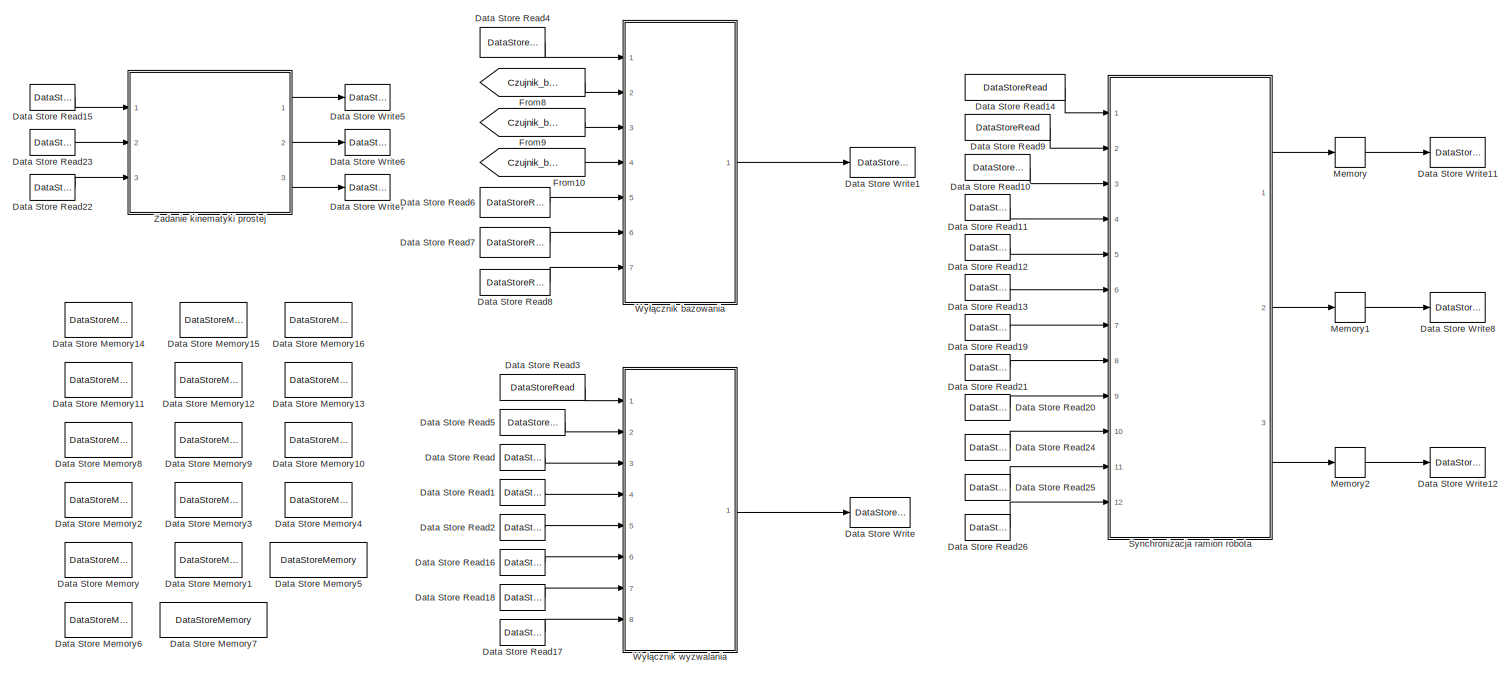
[diagram: root canvas - part 1/3, full width, top band]
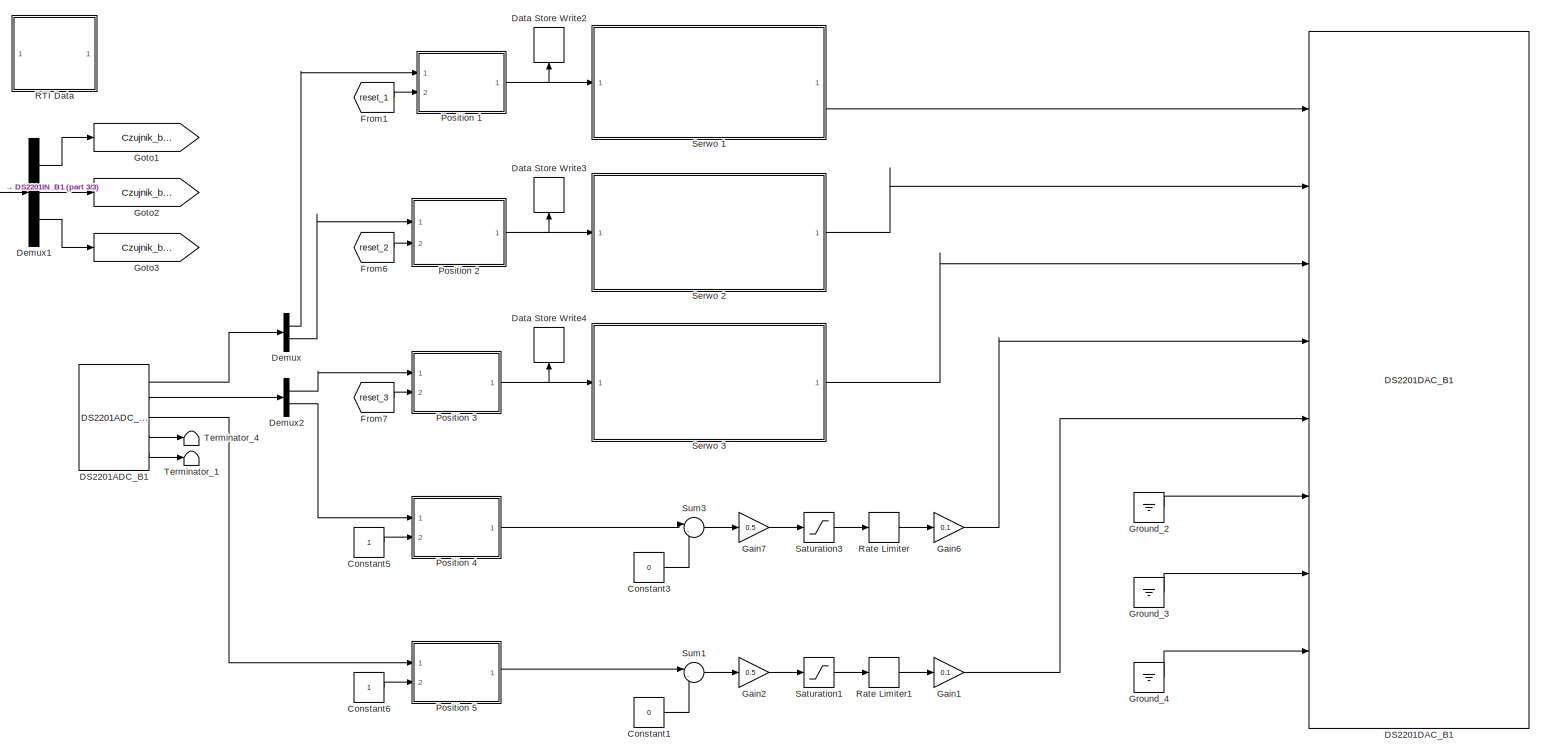
[diagram: root canvas - part 2/3, full width, bottom band]
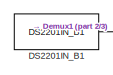
[diagram: root canvas - part 3/3, middle left region]
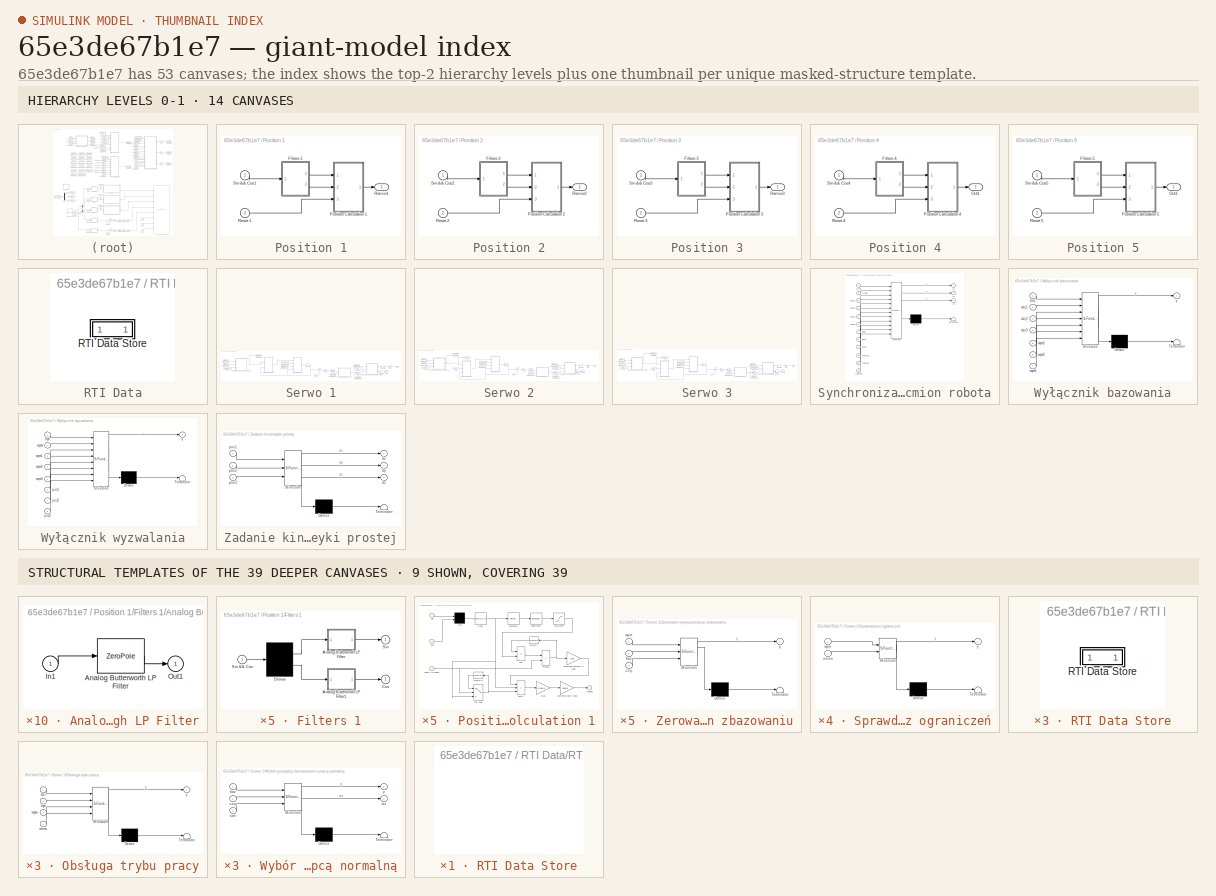
[diagram: thumbnail index - top-2 hierarchy levels (14 canvases) + 9 structural-template representatives of the remaining 39 canvases]
MODEL slx_65e3de67b1e7
KIND model
CONFIG AbsTol = auto
CONFIG EnableMultiTasking = on
CONFIG FixedStep = 0.001
CONFIG MaxStep = auto
CONFIG MinStep = auto
CONFIG PostLoadFcn = , if any(exist('dsrtsu_mdlpostloadfcn', 'file') == [2, 3, 6]), try dsrtsu_mdlpostloadfcn('Execute', bdroot); catch fprintf('Error in PostLoadFcn (dsrtsu_mdlpostloadfcn) for model "%s":\n %s\n', bdroot, lasterr); end, end, \n
CONFIG RelTol = 1e-3
CONFIG SampleTimeConstraint = Unconstrained
CONFIG SolverName = ode1
CONFIG StartTime = 0.0
CONFIG StopTime = Inf
BLOCK [Constant] Constant1
  Value = 0
BLOCK [Constant] Constant3
  Value = 0
BLOCK [Constant] Constant5
BLOCK [Constant] Constant6
BLOCK [Reference] DS2201ADC_B1  REF=rtilibm/DS2201/DS2201ADC_B1
  Diagnostics = AllowInheritedTsInSrc
  Ports = [0, 5]
  SourceBlock = rtilibm/DS2201/DS2201ADC_B1
  SourceType = DS2201ADC
BLOCK [Reference] DS2201DAC_B1  REF=rtilibm/DS2201/DS2201DAC_B1
  Diagnostics = AllowInheritedTsInSrc
  Ports = [8]
  SourceBlock = rtilibm/DS2201/DS2201DAC_B1
  SourceType = DS2201DAC
BLOCK [Reference] DS2201IN_B1  REF=rtilibm/DS2201/DS2201IN_B1
  Ports = [0, 1]
  SourceBlock = rtilibm/DS2201/DS2201IN_B1
  SourceType = DS2201IN
BLOCK [DataStoreMemory] Data Store Memory
  DataStoreName = Bazowanie
  ReadBeforeWriteMsg = warning
  ShowAdditionalParam = off
  WriteAfterReadMsg = warning
  WriteAfterWriteMsg = warning
BLOCK [DataStoreMemory] Data Store Memory1
  DataStoreName = Wyzwalanie
  ReadBeforeWriteMsg = warning
  ShowAdditionalParam = off
  WriteAfterReadMsg = warning
  WriteAfterWriteMsg = warning
BLOCK [DataStoreMemory] Data Store Memory10
  DataStoreName = Poz3
  ReadBeforeWriteMsg = warning
  ShowAdditionalParam = off
  WriteAfterReadMsg = warning
  WriteAfterWriteMsg = warning
BLOCK [DataStoreMemory] Data Store Memory11
  DataStoreName = dx
  ReadBeforeWriteMsg = warning
  ShowAdditionalParam = off
  WriteAfterReadMsg = warning
  WriteAfterWriteMsg = warning
BLOCK [DataStoreMemory] Data Store Memory12
  DataStoreName = dy
  ReadBeforeWriteMsg = warning
  ShowAdditionalParam = off
  WriteAfterReadMsg = warning
  WriteAfterWriteMsg = warning
BLOCK [DataStoreMemory] Data Store Memory13
  DataStoreName = dz
  ReadBeforeWriteMsg = warning
  ShowAdditionalParam = off
  WriteAfterReadMsg = warning
  WriteAfterWriteMsg = warning
BLOCK [DataStoreMemory] Data Store Memory14
  DataStoreName = Sync1
  ReadBeforeWriteMsg = warning
  ShowAdditionalParam = off
  WriteAfterReadMsg = warning
  WriteAfterWriteMsg = warning
BLOCK [DataStoreMemory] Data Store Memory15
  DataStoreName = Sync2
  ReadBeforeWriteMsg = warning
  ShowAdditionalParam = off
  WriteAfterReadMsg = warning
  WriteAfterWriteMsg = warning
BLOCK [DataStoreMemory] Data Store Memory16
  DataStoreName = Sync3
  ReadBeforeWriteMsg = warning
  ShowAdditionalParam = off
  WriteAfterReadMsg = warning
  WriteAfterWriteMsg = warning
BLOCK [DataStoreMemory] Data Store Memory2
  DataStoreName = Wym1
  ReadBeforeWriteMsg = warning
  ShowAdditionalParam = off
  WriteAfterReadMsg = warning
  WriteAfterWriteMsg = warning
BLOCK [DataStoreMemory] Data Store Memory3
  DataStoreName = Wym2
  ReadBeforeWriteMsg = warning
  ShowAdditionalParam = off
  WriteAfterReadMsg = warning
  WriteAfterWriteMsg = warning
BLOCK [DataStoreMemory] Data Store Memory4
  DataStoreName = Wym3
  ReadBeforeWriteMsg = warning
  ShowAdditionalParam = off
  WriteAfterReadMsg = warning
  WriteAfterWriteMsg = warning
BLOCK [DataStoreMemory] Data Store Memory5
  DataStoreName = Tryb_wyzwalany
  ReadBeforeWriteMsg = warning
  ShowAdditionalParam = off
  WriteAfterReadMsg = warning
  WriteAfterWriteMsg = warning
BLOCK [DataStoreMemory] Data Store Memory6
  DataStoreName = Predkosc
  InitialValue = 100
  ReadBeforeWriteMsg = warning
  ShowAdditionalParam = off
  WriteAfterReadMsg = warning
  WriteAfterWriteMsg = warning
BLOCK [DataStoreMemory] Data Store Memory7
  DataStoreName = Tryb_synchroniczny
  InitialValue = 100
  ReadBeforeWriteMsg = warning
  ShowAdditionalParam = off
  WriteAfterReadMsg = warning
  WriteAfterWriteMsg = warning
BLOCK [DataStoreMemory] Data Store Memory8
  DataStoreName = Poz1
  ReadBeforeWriteMsg = warning
  ShowAdditionalParam = off
  WriteAfterReadMsg = warning
  WriteAfterWriteMsg = warning
BLOCK [DataStoreMemory] Data Store Memory9
  DataStoreName = Poz2
  ReadBeforeWriteMsg = warning
  ShowAdditionalParam = off
  WriteAfterReadMsg = warning
  WriteAfterWriteMsg = warning
BLOCK [DataStoreRead] Data Store Read
  DataStoreName = Wym1
  IndexOptions = Index vector (dialog)
  Indices = 1
  OutputSizes = 1
  Ports = [0, 1]
BLOCK [DataStoreRead] Data Store Read1
  DataStoreName = Wym2
  IndexOptions = Index vector (dialog)
  Indices = 1
  OutputSizes = 1
  Ports = [0, 1]
BLOCK [DataStoreRead] Data Store Read10
  DataStoreName = Wyzwalanie
  IndexOptions = Index vector (dialog)
  Indices = 1
  OutputSizes = 1
  Ports = [0, 1]
BLOCK [DataStoreRead] Data Store Read11
  DataStoreName = Wym1
  IndexOptions = Index vector (dialog)
  Indices = 1
  OutputSizes = 1
  Ports = [0, 1]
BLOCK [DataStoreRead] Data Store Read12
  DataStoreName = Wym2
  IndexOptions = Index vector (dialog)
  Indices = 1
  OutputSizes = 1
  Ports = [0, 1]
BLOCK [DataStoreRead] Data Store Read13
  DataStoreName = Wym3
  IndexOptions = Index vector (dialog)
  Indices = 1
  OutputSizes = 1
  Ports = [0, 1]
BLOCK [DataStoreRead] Data Store Read14
  DataStoreName = Tryb_synchroniczny
  IndexOptions = Index vector (dialog)
  Indices = 1
  OutputSizes = 1
  Ports = [0, 1]
BLOCK [DataStoreRead] Data Store Read15
  DataStoreName = Poz1
  IndexOptions = Index vector (dialog)
  Indices = 1
  OutputSizes = 1
  Ports = [0, 1]
BLOCK [DataStoreRead] Data Store Read16
  DataStoreName = Poz1
  IndexOptions = Index vector (dialog)
  Indices = 1
  OutputSizes = 1
  Ports = [0, 1]
BLOCK [DataStoreRead] Data Store Read17
  DataStoreName = Poz3
  IndexOptions = Index vector (dialog)
  Indices = 1
  OutputSizes = 1
  Ports = [0, 1]
BLOCK [DataStoreRead] Data Store Read18
  DataStoreName = Poz2
  IndexOptions = Index vector (dialog)
  Indices = 1
  OutputSizes = 1
  Ports = [0, 1]
BLOCK [DataStoreRead] Data Store Read19
  DataStoreName = Poz1
  IndexOptions = Index vector (dialog)
  Indices = 1
  OutputSizes = 1
  Ports = [0, 1]
BLOCK [DataStoreRead] Data Store Read2
  DataStoreName = Wym3
  IndexOptions = Index vector (dialog)
  Indices = 1
  OutputSizes = 1
  Ports = [0, 1]
BLOCK [DataStoreRead] Data Store Read20
  DataStoreName = Poz3
  IndexOptions = Index vector (dialog)
  Indices = 1
  OutputSizes = 1
  Ports = [0, 1]
BLOCK [DataStoreRead] Data Store Read21
  DataStoreName = Poz2
  IndexOptions = Index vector (dialog)
  Indices = 1
  OutputSizes = 1
  Ports = [0, 1]
BLOCK [DataStoreRead] Data Store Read22
  DataStoreName = Poz3
  IndexOptions = Index vector (dialog)
  Indices = 1
  OutputSizes = 1
  Ports = [0, 1]
BLOCK [DataStoreRead] Data Store Read23
  DataStoreName = Poz2
  IndexOptions = Index vector (dialog)
  Indices = 1
  OutputSizes = 1
  Ports = [0, 1]
BLOCK [DataStoreRead] Data Store Read24
  DataStoreName = Sync1
  IndexOptions = Index vector (dialog)
  Indices = 1
  OutputSizes = 1
  Ports = [0, 1]
BLOCK [DataStoreRead] Data Store Read25
  DataStoreName = Sync2
  IndexOptions = Index vector (dialog)
  Indices = 1
  OutputSizes = 1
  Ports = [0, 1]
BLOCK [DataStoreRead] Data Store Read26
  DataStoreName = Sync3
  IndexOptions = Index vector (dialog)
  Indices = 1
  OutputSizes = 1
  Ports = [0, 1]
BLOCK [DataStoreRead] Data Store Read3
  DataStoreName = Tryb_wyzwalany
  IndexOptions = Index vector (dialog)
  Indices = 1
  OutputSizes = 1
  Ports = [0, 1]
BLOCK [DataStoreRead] Data Store Read4
  DataStoreName = Bazowanie
  IndexOptions = Index vector (dialog)
  Indices = 1
  OutputSizes = 1
  Ports = [0, 1]
BLOCK [DataStoreRead] Data Store Read5
  DataStoreName = Wyzwalanie
  IndexOptions = Index vector (dialog)
  Indices = 1
  OutputSizes = 1
  Ports = [0, 1]
BLOCK [DataStoreRead] Data Store Read6
  DataStoreName = Wym1
  IndexOptions = Index vector (dialog)
  Indices = 1
  OutputSizes = 1
  Ports = [0, 1]
BLOCK [DataStoreRead] Data Store Read7
  DataStoreName = Wym2
  IndexOptions = Index vector (dialog)
  Indices = 1
  OutputSizes = 1
  Ports = [0, 1]
BLOCK [DataStoreRead] Data Store Read8
  DataStoreName = Wym3
  IndexOptions = Index vector (dialog)
  Indices = 1
  OutputSizes = 1
  Ports = [0, 1]
BLOCK [DataStoreRead] Data Store Read9
  DataStoreName = Tryb_wyzwalany
  IndexOptions = Index vector (dialog)
  Indices = 1
  OutputSizes = 1
  Ports = [0, 1]
BLOCK [DataStoreWrite] Data Store Write
  DataStoreName = Wyzwalanie
  IndexOptions = Index vector (dialog)
  Indices = 1
  OutputSizes = 1
  Ports = [1]
BLOCK [DataStoreWrite] Data Store Write1
  DataStoreName = Bazowanie
  IndexOptions = Index vector (dialog)
  Indices = 1
  OutputSizes = 1
  Ports = [1]
BLOCK [DataStoreWrite] Data Store Write11
  DataStoreName = Sync1
  IndexOptions = Index vector (dialog)
  Indices = 1
  OutputSizes = 1
  Ports = [1]
BLOCK [DataStoreWrite] Data Store Write12
  DataStoreName = Sync3
  IndexOptions = Index vector (dialog)
  Indices = 1
  OutputSizes = 1
  Ports = [1]
BLOCK [DataStoreWrite] Data Store Write2
  DataStoreName = Poz1
  IndexOptions = Index vector (dialog)
  Indices = 1
  NameLocation = right
  OutputSizes = 1
  Ports = [1]
BLOCK [DataStoreWrite] Data Store Write3
  DataStoreName = Poz2
  IndexOptions = Index vector (dialog)
  Indices = 1
  NameLocation = right
  OutputSizes = 1
  Ports = [1]
BLOCK [DataStoreWrite] Data Store Write4
  DataStoreName = Poz3
  IndexOptions = Index vector (dialog)
  Indices = 1
  NameLocation = right
  OutputSizes = 1
  Ports = [1]
BLOCK [DataStoreWrite] Data Store Write5
  DataStoreName = dx
  IndexOptions = Index vector (dialog)
  Indices = 1
  OutputSizes = 1
  Ports = [1]
BLOCK [DataStoreWrite] Data Store Write6
  DataStoreName = dy
  IndexOptions = Index vector (dialog)
  Indices = 1
  OutputSizes = 1
  Ports = [1]
BLOCK [DataStoreWrite] Data Store Write7
  DataStoreName = dz
  IndexOptions = Index vector (dialog)
  Indices = 1
  OutputSizes = 1
  Ports = [1]
BLOCK [DataStoreWrite] Data Store Write8
  DataStoreName = Sync2
  IndexOptions = Index vector (dialog)
  Indices = 1
  OutputSizes = 1
  Ports = [1]
BLOCK [Demux] Demux
  Outputs = 2
  Ports = [1, 2]
BLOCK [Demux] Demux1
  Outputs = 3
  Ports = [1, 3]
BLOCK [Demux] Demux2
  Outputs = 2
  Ports = [1, 2]
BLOCK [From] From1
  GotoTag = reset_1
  TagVisibility = global
BLOCK [From] From10
  GotoTag = Czujnik_bazowy_3
  TagVisibility = global
BLOCK [From] From6
  GotoTag = reset_2
  TagVisibility = global
BLOCK [From] From7
  GotoTag = reset_3
  TagVisibility = global
BLOCK [From] From8
  GotoTag = Czujnik_bazowy_1
  TagVisibility = global
BLOCK [From] From9
  GotoTag = Czujnik_bazowy_2
  TagVisibility = global
BLOCK [Gain] Gain1
  Gain = 0.1
BLOCK [Gain] Gain2
  Gain = 0.5
BLOCK [Gain] Gain6
  Gain = 0.1
BLOCK [Gain] Gain7
  Gain = 0.5
BLOCK [Goto] Goto1
  GotoTag = Czujnik_bazowy_1
  TagVisibility = global
BLOCK [Goto] Goto2
  GotoTag = Czujnik_bazowy_2
  TagVisibility = global
BLOCK [Goto] Goto3
  GotoTag = Czujnik_bazowy_3
  TagVisibility = global
BLOCK [Ground] Ground_2
BLOCK [Ground] Ground_3
BLOCK [Ground] Ground_4
BLOCK [Memory] Memory
  InitialCondition = 1
BLOCK [Memory] Memory1
  InitialCondition = 1
BLOCK [Memory] Memory2
  InitialCondition = 1
BLOCK [SubSystem] Position 1
  Ports = [2, 1]
  RequestExecContextInheritance = off
BLOCK [SubSystem] Position 1/Filters 1
  Ports = [1, 2]
  RequestExecContextInheritance = off
  ShowPortLabels = none
BLOCK [SubSystem] Position 1/Filters 1/Analog Butterworth LP Filter
  Ports = [1, 1]
  RequestExecContextInheritance = off
BLOCK [ZeroPole] Position 1/Filters 1/Analog Butterworth LP Filter/Analog Butterworth LP Filter
  Gain = k
  Poles = p
  Zeros = z
BLOCK [Inport] Position 1/Filters 1/Analog Butterworth LP Filter/In1
BLOCK [Outport] Position 1/Filters 1/Analog Butterworth LP Filter/Out1
BLOCK [SubSystem] Position 1/Filters 1/Analog Butterworth LP Filter1
  Ports = [1, 1]
  RequestExecContextInheritance = off
BLOCK [ZeroPole] Position 1/Filters 1/Analog Butterworth LP Filter1/Analog Butterworth LP Filter1
  Gain = k
  Poles = p
  Zeros = z
BLOCK [Inport] Position 1/Filters 1/Analog Butterworth LP Filter1/In1
BLOCK [Outport] Position 1/Filters 1/Analog Butterworth LP Filter1/Out1
BLOCK [Outport] Position 1/Filters 1/Cos
  Port = 2
BLOCK [Demux] Position 1/Filters 1/Demux
  DisplayOption = none
  Outputs = 2
  Ports = [1, 2]
BLOCK [Outport] Position 1/Filters 1/Sin
BLOCK [Inport] Position 1/Filters 1/Sin && Cos
BLOCK [SubSystem] Position 1/Position Calculation 1
  Ports = [3, 1]
  RequestExecContextInheritance = off
  ShowPortLabels = none
BLOCK [Fcn] Position 1/Position Calculation 1/Atan2
  Expr = atan2(u[1],u[2])
BLOCK [Gain] Position 1/Position Calculation 1/Conversion Rad to Deg
  Gain = 180/pi
  OutDataTypeStr = Inherit: Same as input
  ParamDataTypeStr = Inherit: Same as input
  SaturateOnIntegerOverflow = on
BLOCK [Gain] Position 1/Position Calculation 1/Conversion Rotation to Angle
  Gain = 2*pi
  OutDataTypeStr = Inherit: Same as input
  ParamDataTypeStr = Inherit: Same as input
  SaturateOnIntegerOverflow = on
BLOCK [Inport] Position 1/Position Calculation 1/Cos
  Port = 2
BLOCK [DeadZone] Position 1/Position Calculation 1/Dead Zone
  LowerValue = -5000
  UpperValue = 5000
BLOCK [Derivative] Position 1/Position Calculation 1/Derivative
BLOCK [Gain] Position 1/Position Calculation 1/Gear
  Gain = 6.33e-3
  OutDataTypeStr = Inherit: Same as input
  ParamDataTypeStr = Inherit: Same as input
  SaturateOnIntegerOverflow = on
BLOCK [Switch] Position 1/Position Calculation 1/Init Angle
  Threshold = 1
BLOCK [Memory] Position 1/Position Calculation 1/Memory
BLOCK [Memory] Position 1/Position Calculation 1/Memory1
BLOCK [Mux] Position 1/Position Calculation 1/Mux
  Inputs = 2
  Ports = [2, 1]
BLOCK [Outport] Position 1/Position Calculation 1/Position
BLOCK [Product] Position 1/Position Calculation 1/Product
  InputSameDT = on
  OutDataTypeStr = Inherit: Same as first input
  Ports = [2, 1]
  RndMeth = Zero
  SaturateOnIntegerOverflow = on
BLOCK [Inport] Position 1/Position Calculation 1/Reset (Impulse)
  Port = 3
BLOCK [Saturate] Position 1/Position Calculation 1/Saturation
  LowerLimit = -1
  UpperLimit = 1
BLOCK [Inport] Position 1/Position Calculation 1/Sin
BLOCK [Sum] Position 1/Position Calculation 1/Sum
  IconShape = rectangular
  InputSameDT = on
  Inputs = +-
  OutDataTypeStr = Inherit: Same as first input
  Ports = [2, 1]
  SaturateOnIntegerOverflow = on
BLOCK [Sum] Position 1/Position Calculation 1/Sum1
  IconShape = rectangular
  InputSameDT = on
  Inputs = ++-
  OutDataTypeStr = Inherit: Same as first input
  Ports = [3, 1]
  SaturateOnIntegerOverflow = on
BLOCK [Outport] Position 1/Ramie1
BLOCK [Inport] Position 1/Reset 1
  Port = 2
BLOCK [Inport] Position 1/Sin && Cos1
BLOCK [SubSystem] Position 2
  Ports = [2, 1]
  RequestExecContextInheritance = off
BLOCK [SubSystem] Position 2/Filters 2
  Ports = [1, 2]
  RequestExecContextInheritance = off
  ShowPortLabels = none
BLOCK [SubSystem] Position 2/Filters 2/Analog Butterworth LP Filter
  Ports = [1, 1]
  RequestExecContextInheritance = off
BLOCK [ZeroPole] Position 2/Filters 2/Analog Butterworth LP Filter/Analog Butterworth LP Filter
  Gain = k
  Poles = p
  Zeros = z
BLOCK [Inport] Position 2/Filters 2/Analog Butterworth LP Filter/In1
BLOCK [Outport] Position 2/Filters 2/Analog Butterworth LP Filter/Out1
BLOCK [SubSystem] Position 2/Filters 2/Analog Butterworth LP Filter1
  Ports = [1, 1]
  RequestExecContextInheritance = off
BLOCK [ZeroPole] Position 2/Filters 2/Analog Butterworth LP Filter1/Analog Butterworth LP Filter1
  Gain = k
  Poles = p
  Zeros = z
BLOCK [Inport] Position 2/Filters 2/Analog Butterworth LP Filter1/In1
BLOCK [Outport] Position 2/Filters 2/Analog Butterworth LP Filter1/Out1
BLOCK [Outport] Position 2/Filters 2/Cos
  Port = 2
BLOCK [Demux] Position 2/Filters 2/Demux
  DisplayOption = none
  Outputs = 2
  Ports = [1, 2]
BLOCK [Outport] Position 2/Filters 2/Sin
BLOCK [Inport] Position 2/Filters 2/Sin && Cos
BLOCK [SubSystem] Position 2/Position Calculation 2
  Ports = [3, 1]
  RequestExecContextInheritance = off
  ShowPortLabels = none
BLOCK [Fcn] Position 2/Position Calculation 2/Atan2
  Expr = atan2(u[1],u[2])
BLOCK [Gain] Position 2/Position Calculation 2/Conversion Rad to Deg
  Gain = 180/pi
  OutDataTypeStr = Inherit: Same as input
  ParamDataTypeStr = Inherit: Same as input
  SaturateOnIntegerOverflow = on
BLOCK [Gain] Position 2/Position Calculation 2/Conversion Rotation to Angle
  Gain = 2*pi
  OutDataTypeStr = Inherit: Same as input
  ParamDataTypeStr = Inherit: Same as input
  SaturateOnIntegerOverflow = on
BLOCK [Inport] Position 2/Position Calculation 2/Cos
  Port = 2
BLOCK [DeadZone] Position 2/Position Calculation 2/Dead Zone
  LowerValue = -5000
  UpperValue = 5000
BLOCK [Derivative] Position 2/Position Calculation 2/Derivative
BLOCK [Gain] Position 2/Position Calculation 2/Gear
  Gain = 6.37e-3
  OutDataTypeStr = Inherit: Same as input
  ParamDataTypeStr = Inherit: Same as input
  SaturateOnIntegerOverflow = on
BLOCK [Switch] Position 2/Position Calculation 2/Init Angle
  Threshold = 1
BLOCK [Memory] Position 2/Position Calculation 2/Memory
BLOCK [Memory] Position 2/Position Calculation 2/Memory1
BLOCK [Mux] Position 2/Position Calculation 2/Mux
  Inputs = 2
  Ports = [2, 1]
BLOCK [Outport] Position 2/Position Calculation 2/Position
BLOCK [Product] Position 2/Position Calculation 2/Product
  InputSameDT = on
  OutDataTypeStr = Inherit: Same as first input
  Ports = [2, 1]
  RndMeth = Zero
  SaturateOnIntegerOverflow = on
BLOCK [Inport] Position 2/Position Calculation 2/Reset (Impulse)
  Port = 3
BLOCK [Saturate] Position 2/Position Calculation 2/Saturation
  LowerLimit = -1
  UpperLimit = 1
BLOCK [Inport] Position 2/Position Calculation 2/Sin
BLOCK [Sum] Position 2/Position Calculation 2/Sum
  IconShape = rectangular
  InputSameDT = on
  Inputs = +-
  OutDataTypeStr = Inherit: Same as first input
  Ports = [2, 1]
  SaturateOnIntegerOverflow = on
BLOCK [Sum] Position 2/Position Calculation 2/Sum1
  IconShape = rectangular
  InputSameDT = on
  Inputs = ++-
  OutDataTypeStr = Inherit: Same as first input
  Ports = [3, 1]
  SaturateOnIntegerOverflow = on
BLOCK [Outport] Position 2/Ramie2
BLOCK [Inport] Position 2/Reset 2
  Port = 2
BLOCK [Inport] Position 2/Sin && Cos2
BLOCK [SubSystem] Position 3
  Ports = [2, 1]
  RequestExecContextInheritance = off
BLOCK [SubSystem] Position 3/Filters 3
  Ports = [1, 2]
  RequestExecContextInheritance = off
  ShowPortLabels = none
BLOCK [SubSystem] Position 3/Filters 3/Analog Butterworth LP Filter
  Ports = [1, 1]
  RequestExecContextInheritance = off
BLOCK [ZeroPole] Position 3/Filters 3/Analog Butterworth LP Filter/Analog Butterworth LP Filter
  Gain = k
  Poles = p
  Zeros = z
BLOCK [Inport] Position 3/Filters 3/Analog Butterworth LP Filter/In1
BLOCK [Outport] Position 3/Filters 3/Analog Butterworth LP Filter/Out1
BLOCK [SubSystem] Position 3/Filters 3/Analog Butterworth LP Filter1
  Ports = [1, 1]
  RequestExecContextInheritance = off
BLOCK [ZeroPole] Position 3/Filters 3/Analog Butterworth LP Filter1/Analog Butterworth LP Filter1
  Gain = k
  Poles = p
  Zeros = z
BLOCK [Inport] Position 3/Filters 3/Analog Butterworth LP Filter1/In1
BLOCK [Outport] Position 3/Filters 3/Analog Butterworth LP Filter1/Out1
BLOCK [Outport] Position 3/Filters 3/Cos
  Port = 2
BLOCK [Demux] Position 3/Filters 3/Demux
  DisplayOption = none
  Outputs = 2
  Ports = [1, 2]
BLOCK [Outport] Position 3/Filters 3/Sin
BLOCK [Inport] Position 3/Filters 3/Sin && Cos
BLOCK [SubSystem] Position 3/Position Calculation 3
  Ports = [3, 1]
  RequestExecContextInheritance = off
  ShowPortLabels = none
BLOCK [Fcn] Position 3/Position Calculation 3/Atan2
  Expr = atan2(u[1],u[2])
BLOCK [Gain] Position 3/Position Calculation 3/Conversion Rad to Deg
  Gain = 180/pi
  OutDataTypeStr = Inherit: Same as input
  ParamDataTypeStr = Inherit: Same as input
  SaturateOnIntegerOverflow = on
BLOCK [Gain] Position 3/Position Calculation 3/Conversion Rotation to Angle
  Gain = 2*pi
  OutDataTypeStr = Inherit: Same as input
  ParamDataTypeStr = Inherit: Same as input
  SaturateOnIntegerOverflow = on
BLOCK [Inport] Position 3/Position Calculation 3/Cos
  Port = 2
BLOCK [DeadZone] Position 3/Position Calculation 3/Dead Zone
  LowerValue = -5000
  UpperValue = 5000
BLOCK [Derivative] Position 3/Position Calculation 3/Derivative
BLOCK [Gain] Position 3/Position Calculation 3/Gear
  Gain = 6.33e-3
  OutDataTypeStr = Inherit: Same as input
  ParamDataTypeStr = Inherit: Same as input
  SaturateOnIntegerOverflow = on
BLOCK [Switch] Position 3/Position Calculation 3/Init Angle
  Threshold = 1
BLOCK [Memory] Position 3/Position Calculation 3/Memory
BLOCK [Memory] Position 3/Position Calculation 3/Memory1
BLOCK [Mux] Position 3/Position Calculation 3/Mux
  Inputs = 2
  Ports = [2, 1]
BLOCK [Outport] Position 3/Position Calculation 3/Position
BLOCK [Product] Position 3/Position Calculation 3/Product
  InputSameDT = on
  OutDataTypeStr = Inherit: Same as first input
  Ports = [2, 1]
  RndMeth = Zero
  SaturateOnIntegerOverflow = on
BLOCK [Inport] Position 3/Position Calculation 3/Reset (Impulse)
  Port = 3
BLOCK [Saturate] Position 3/Position Calculation 3/Saturation
  LowerLimit = -1
  UpperLimit = 1
BLOCK [Inport] Position 3/Position Calculation 3/Sin
BLOCK [Sum] Position 3/Position Calculation 3/Sum
  IconShape = rectangular
  InputSameDT = on
  Inputs = +-
  OutDataTypeStr = Inherit: Same as first input
  Ports = [2, 1]
  SaturateOnIntegerOverflow = on
BLOCK [Sum] Position 3/Position Calculation 3/Sum1
  IconShape = rectangular
  InputSameDT = on
  Inputs = ++-
  OutDataTypeStr = Inherit: Same as first input
  Ports = [3, 1]
  SaturateOnIntegerOverflow = on
BLOCK [Outport] Position 3/Ramie3
BLOCK [Inport] Position 3/Reset 3
  Port = 2
BLOCK [Inport] Position 3/Sin && Cos3
BLOCK [SubSystem] Position 4
  Ports = [2, 1]
  RequestExecContextInheritance = off
BLOCK [SubSystem] Position 4/Filters 4
  Ports = [1, 2]
  RequestExecContextInheritance = off
  ShowPortLabels = none
BLOCK [SubSystem] Position 4/Filters 4/Analog Butterworth LP Filter
  Ports = [1, 1]
  RequestExecContextInheritance = off
BLOCK [ZeroPole] Position 4/Filters 4/Analog Butterworth LP Filter/Analog Butterworth LP Filter
  Gain = k
  Poles = p
  Zeros = z
BLOCK [Inport] Position 4/Filters 4/Analog Butterworth LP Filter/In1
BLOCK [Outport] Position 4/Filters 4/Analog Butterworth LP Filter/Out1
BLOCK [SubSystem] Position 4/Filters 4/Analog Butterworth LP Filter1
  Ports = [1, 1]
  RequestExecContextInheritance = off
BLOCK [ZeroPole] Position 4/Filters 4/Analog Butterworth LP Filter1/Analog Butterworth LP Filter1
  Gain = k
  Poles = p
  Zeros = z
BLOCK [Inport] Position 4/Filters 4/Analog Butterworth LP Filter1/In1
BLOCK [Outport] Position 4/Filters 4/Analog Butterworth LP Filter1/Out1
BLOCK [Outport] Position 4/Filters 4/Cos
  Port = 2
BLOCK [Demux] Position 4/Filters 4/Demux
  DisplayOption = none
  Outputs = 2
  Ports = [1, 2]
BLOCK [Outport] Position 4/Filters 4/Sin
BLOCK [Inport] Position 4/Filters 4/Sin && Cos
BLOCK [Outport] Position 4/Out1
BLOCK [SubSystem] Position 4/Position Calculation 4
  Ports = [3, 1]
  RequestExecContextInheritance = off
  ShowPortLabels = none
BLOCK [Fcn] Position 4/Position Calculation 4/Atan2
  Expr = atan2(u[1],u[2])
BLOCK [Gain] Position 4/Position Calculation 4/Conversion Rad to Deg
  Gain = 180/pi
  OutDataTypeStr = Inherit: Same as input
  ParamDataTypeStr = Inherit: Same as input
  SaturateOnIntegerOverflow = on
BLOCK [Gain] Position 4/Position Calculation 4/Conversion Rotation to Angle
  Gain = 2*pi
  OutDataTypeStr = Inherit: Same as input
  ParamDataTypeStr = Inherit: Same as input
  SaturateOnIntegerOverflow = on
BLOCK [Inport] Position 4/Position Calculation 4/Cos
  Port = 2
BLOCK [DeadZone] Position 4/Position Calculation 4/Dead Zone
  LowerValue = -5000
  UpperValue = 5000
BLOCK [Derivative] Position 4/Position Calculation 4/Derivative
BLOCK [Gain] Position 4/Position Calculation 4/Gear
  Gain = 7.87e-3
  OutDataTypeStr = Inherit: Same as input
  ParamDataTypeStr = Inherit: Same as input
  SaturateOnIntegerOverflow = on
BLOCK [Switch] Position 4/Position Calculation 4/Init Angle
  Threshold = 1
BLOCK [Memory] Position 4/Position Calculation 4/Memory
BLOCK [Memory] Position 4/Position Calculation 4/Memory1
BLOCK [Mux] Position 4/Position Calculation 4/Mux
  Inputs = 2
  Ports = [2, 1]
BLOCK [Outport] Position 4/Position Calculation 4/Position
BLOCK [Product] Position 4/Position Calculation 4/Product
  InputSameDT = on
  OutDataTypeStr = Inherit: Same as first input
  Ports = [2, 1]
  RndMeth = Zero
  SaturateOnIntegerOverflow = on
BLOCK [Inport] Position 4/Position Calculation 4/Reset (Impulse)
  Port = 3
BLOCK [Saturate] Position 4/Position Calculation 4/Saturation
  LowerLimit = -1
  UpperLimit = 1
BLOCK [Inport] Position 4/Position Calculation 4/Sin
BLOCK [Sum] Position 4/Position Calculation 4/Sum
  IconShape = rectangular
  InputSameDT = on
  Inputs = +-
  OutDataTypeStr = Inherit: Same as first input
  Ports = [2, 1]
  SaturateOnIntegerOverflow = on
BLOCK [Sum] Position 4/Position Calculation 4/Sum1
  IconShape = rectangular
  InputSameDT = on
  Inputs = ++-
  OutDataTypeStr = Inherit: Same as first input
  Ports = [3, 1]
  SaturateOnIntegerOverflow = on
BLOCK [Inport] Position 4/Reset 4
  Port = 2
BLOCK [Inport] Position 4/Sin && Cos4
BLOCK [SubSystem] Position 5
  Ports = [2, 1]
  RequestExecContextInheritance = off
BLOCK [SubSystem] Position 5/Filters 5
  Ports = [1, 2]
  RequestExecContextInheritance = off
  ShowPortLabels = none
BLOCK [SubSystem] Position 5/Filters 5/Analog Butterworth LP Filter
  Ports = [1, 1]
  RequestExecContextInheritance = off
BLOCK [ZeroPole] Position 5/Filters 5/Analog Butterworth LP Filter/Analog Butterworth LP Filter
  Gain = k
  Poles = p
  Zeros = z
BLOCK [Inport] Position 5/Filters 5/Analog Butterworth LP Filter/In1
BLOCK [Outport] Position 5/Filters 5/Analog Butterworth LP Filter/Out1
BLOCK [SubSystem] Position 5/Filters 5/Analog Butterworth LP Filter1
  Ports = [1, 1]
  RequestExecContextInheritance = off
BLOCK [ZeroPole] Position 5/Filters 5/Analog Butterworth LP Filter1/Analog Butterworth LP Filter1
  Gain = k
  Poles = p
  Zeros = z
BLOCK [Inport] Position 5/Filters 5/Analog Butterworth LP Filter1/In1
BLOCK [Outport] Position 5/Filters 5/Analog Butterworth LP Filter1/Out1
BLOCK [Outport] Position 5/Filters 5/Cos
  Port = 2
BLOCK [Demux] Position 5/Filters 5/Demux
  DisplayOption = none
  Outputs = 2
  Ports = [1, 2]
BLOCK [Outport] Position 5/Filters 5/Sin
BLOCK [Inport] Position 5/Filters 5/Sin && Cos
BLOCK [Outport] Position 5/Out1
BLOCK [SubSystem] Position 5/Position Calculation 5
  Ports = [3, 1]
  RequestExecContextInheritance = off
  ShowPortLabels = none
BLOCK [Fcn] Position 5/Position Calculation 5/Atan2
  Expr = atan2(u[1],u[2])
BLOCK [Gain] Position 5/Position Calculation 5/Conversion Rad to Deg
  Gain = 180/pi
  OutDataTypeStr = Inherit: Same as input
  ParamDataTypeStr = Inherit: Same as input
  SaturateOnIntegerOverflow = on
BLOCK [Gain] Position 5/Position Calculation 5/Conversion Rotation to Angle
  Gain = 2*pi
  OutDataTypeStr = Inherit: Same as input
  ParamDataTypeStr = Inherit: Same as input
  SaturateOnIntegerOverflow = on
BLOCK [Inport] Position 5/Position Calculation 5/Cos
  Port = 2
BLOCK [DeadZone] Position 5/Position Calculation 5/Dead Zone
  LowerValue = -5000
  UpperValue = 5000
BLOCK [Derivative] Position 5/Position Calculation 5/Derivative
BLOCK [Gain] Position 5/Position Calculation 5/Gear
  Gain = 1.32e-2
  OutDataTypeStr = Inherit: Same as input
  ParamDataTypeStr = Inherit: Same as input
  SaturateOnIntegerOverflow = on
BLOCK [Switch] Position 5/Position Calculation 5/Init Angle
  Threshold = 1
BLOCK [Memory] Position 5/Position Calculation 5/Memory
BLOCK [Memory] Position 5/Position Calculation 5/Memory1
BLOCK [Mux] Position 5/Position Calculation 5/Mux
  Inputs = 2
  Ports = [2, 1]
BLOCK [Outport] Position 5/Position Calculation 5/Position
BLOCK [Product] Position 5/Position Calculation 5/Product
  InputSameDT = on
  OutDataTypeStr = Inherit: Same as first input
  Ports = [2, 1]
  RndMeth = Zero
  SaturateOnIntegerOverflow = on
BLOCK [Inport] Position 5/Position Calculation 5/Reset (Impulse)
  Port = 3
BLOCK [Saturate] Position 5/Position Calculation 5/Saturation
  LowerLimit = -1
  UpperLimit = 1
BLOCK [Inport] Position 5/Position Calculation 5/Sin
BLOCK [Sum] Position 5/Position Calculation 5/Sum
  IconShape = rectangular
  InputSameDT = on
  Inputs = +-
  OutDataTypeStr = Inherit: Same as first input
  Ports = [2, 1]
  SaturateOnIntegerOverflow = on
BLOCK [Sum] Position 5/Position Calculation 5/Sum1
  IconShape = rectangular
  InputSameDT = on
  Inputs = ++-
  OutDataTypeStr = Inherit: Same as first input
  Ports = [3, 1]
  SaturateOnIntegerOverflow = on
BLOCK [Inport] Position 5/Reset 5
  Port = 2
BLOCK [Inport] Position 5/Sin && Cos5
BLOCK [SubSystem] RTI Data
  CopyFcn = if exist('rtidc'), try,  rtidc('DataHostBlockClbCopy', gcbh); catch, disp(['Warning: ''CopyFcn'' for RTI Data block failed: ' lasterr]); end, end,
  DeleteFcn = if exist('rtidc'), try,  rtidc('DataHostBlockClbDelete', gcbh); catch, disp(['Warning: ''DeleteFcn'' for RTI Data block failed: ' lasterr]); end, end,
  LoadFcn = if exist('rtidc'), try,  rtidc('DataHostBlockClbLoad', gcbh); catch, disp(['Warning: ''LoadFcn'' for RTI Data block failed: ' lasterr]); end, end,
  ModelCloseFcn = if exist('rtidc'), try,  rtidc('DataHostBlockClbModelClose', gcbh); catch, disp(['Warning: ''ModelCloseFcn'' for RTI Data block failed: ' lasterr]); end, end,
  NameChangeFcn = if exist('rtidc'), try,  rtidc('DataHostBlockClbNameChange', gcbh); catch, disp(['Warning: ''NameChangeFcn'' for RTI Data block failed: ' lasterr]); end, end,
  Ports = []
  PostSaveFcn = if exist('rtidc'), try,  rtidc('DataHostBlockClbPostSave', gcbh); catch, disp(['Warning: ''PostSaveFcn'' for RTI Data block failed: ' lasterr]); end, end,
  PreSaveFcn = if exist('rtidc'), try,  rtidc('DataHostBlockClbPreSave', gcbh); catch, disp(['Warning: ''PreSaveFcn'' for RTI Data block failed: ' lasterr]); end, end,
  RequestExecContextInheritance = off
  Tag = struct('RTIDataServer',struct('RTIDataServerVs','2','RTIModelDescription','struct(''main'',''irp6v2'',''sub'','''',''isMp'',0)'))
BLOCK [SubSystem] RTI Data/RTI Data Store
  Ports = []
  RequestExecContextInheritance = off
  Tag = struct('private',struct('version',struct('dsVer',uint32(2),'dsVerCreation',uint32(2),'RTI',struct('ver','7.4','type','RTI1005')),'access',struct('type','Model','isPerm',1,'created',['20-Oct-2021 13:45:42'],'modified',['10-Nov-2021 14:32:45'],'location','')),'public',struct('main',struct('data',[]),'sub',struct('name',{{'irp6v2'}},'data',{{struct('TH',struct('thTaskInfo',struct('taskType',{'TIMER',...<+883ch>
BLOCK [SubSystem] RTI Data/RTI Data Store/RTI Data Store
  Ports = []
  RequestExecContextInheritance = off
BLOCK [SubSystem] RTI Data/RTI Data Store/RTI Data Store/RTI Data Store
  Ports = []
  RequestExecContextInheritance = off
BLOCK [SubSystem] RTI Data/RTI Data Store/RTI Data Store/RTI Data Store/RTI Data Store
  Ports = []
  RequestExecContextInheritance = off
BLOCK [RateLimiter] Rate Limiter
  FallingSlewLimit = -50
  RisingSlewLimit = 50
  SampleTimeMode = inherited
BLOCK [RateLimiter] Rate Limiter1
  FallingSlewLimit = -50
  RisingSlewLimit = 50
  SampleTimeMode = inherited
BLOCK [Saturate] Saturation1
  LowerLimit = -3
  UpperLimit = 3
BLOCK [Saturate] Saturation3
  LowerLimit = -3
  UpperLimit = 3
BLOCK [SubSystem] Serwo 1
  Ports = [1, 1]
  RequestExecContextInheritance = off
BLOCK [DataStoreRead] Serwo 1/Data Store Read
  DataStoreName = Wym1
  IndexOptions = Index vector (dialog)
  Indices = 1
  OutputSizes = 1
  Ports = [0, 1]
BLOCK [DataStoreRead] Serwo 1/Data Store Read2
  DataStoreName = Tryb_wyzwalany
  IndexOptions = Index vector (dialog)
  Indices = 1
  OutputSizes = 1
  Ports = [0, 1]
BLOCK [DataStoreRead] Serwo 1/Data Store Read27
  DataStoreName = Sync1
  IndexOptions = Index vector (dialog)
  Indices = 1
  OutputSizes = 1
  Ports = [0, 1]
BLOCK [DataStoreRead] Serwo 1/Data Store Read3
  DataStoreName = Bazowanie
  IndexOptions = Index vector (dialog)
  Indices = 1
  OutputSizes = 1
  Ports = [0, 1]
BLOCK [DataStoreRead] Serwo 1/Data Store Read4
  DataStoreName = Wyzwalanie
  IndexOptions = Index vector (dialog)
  Indices = 1
  OutputSizes = 1
  Ports = [0, 1]
BLOCK [DataStoreRead] Serwo 1/Data Store Read7
  DataStoreName = Bazowanie
  IndexOptions = Index vector (dialog)
  Indices = 1
  OutputSizes = 1
  Ports = [0, 1]
BLOCK [DataStoreRead] Serwo 1/Data Store Read8
  DataStoreName = Predkosc
  IndexOptions = Index vector (dialog)
  Indices = 1
  OutputSizes = 1
  Ports = [0, 1]
BLOCK [DataStoreWrite] Serwo 1/Data Store Write1
  DataStoreName = Wym1
  IndexOptions = Index vector (dialog)
  Indices = 1
  OutputSizes = 1
  Ports = [1]
BLOCK [From] Serwo 1/From2
  GotoTag = Czujnik_bazowy_1
  TagVisibility = global
BLOCK [From] Serwo 1/From3
  GotoTag = Czujnik_bazowy_1
  TagVisibility = global
BLOCK [Gain] Serwo 1/Gain2
  Gain = 0.5
BLOCK [Gain] Serwo 1/Gain4
  Gain = 0.1
BLOCK [Goto] Serwo 1/Goto1
  GotoTag = reset_1
  TagVisibility = global
BLOCK [Memory] Serwo 1/Memory1
BLOCK [Memory] Serwo 1/Memory3
  InitialCondition = 1
BLOCK [SubSystem] Serwo 1/Obsługa trybu pracy
  ErrorFcn = Stateflow.Translate.translate
  PermitHierarchicalResolution = ExplicitOnly
  Ports = [4, 1]
  RequestExecContextInheritance = off
  SFBlockType = MATLAB Function
  TreatAsAtomicUnit = on
BLOCK [Demux] Serwo 1/Obsługa trybu pracy/ Demux 
  Outputs = 1
  Ports = [1, 1]
BLOCK [S-Function] Serwo 1/Obsługa trybu pracy/ SFunction 
  EnableBusSupport = off
  FunctionName = sf_sfun
  PortCounts = [4 2]
  Ports = [4, 2]
  SFcnIsStateOwnerBlock = off
  SFunctionDeploymentMode = off
  Tag = Stateflow S-Function 12
BLOCK [Terminator] Serwo 1/Obsługa trybu pracy/ Terminator 
BLOCK [Inport] Serwo 1/Obsługa trybu pracy/memo
  Port = 4
BLOCK [Inport] Serwo 1/Obsługa trybu pracy/ster
BLOCK [Inport] Serwo 1/Obsługa trybu pracy/tryb
  Port = 2
BLOCK [Inport] Serwo 1/Obsługa trybu pracy/wyzw
  Port = 3
BLOCK [Outport] Serwo 1/Obsługa trybu pracy/y
BLOCK [Outport] Serwo 1/Out
BLOCK [Product] Serwo 1/Product
  Ports = [2, 1]
BLOCK [Inport] Serwo 1/Ramie1
BLOCK [RateLimiter] Serwo 1/Rate Limiter1
  FallingSlewLimit = -50
  RisingSlewLimit = 50
  SampleTimeMode = inherited
BLOCK [Saturate] Serwo 1/Saturation1
  LowerLimit = -3
  UpperLimit = 3
BLOCK [SubSystem] Serwo 1/Sprawdzanie ograniczeń
  ErrorFcn = Stateflow.Translate.translate
  PermitHierarchicalResolution = ExplicitOnly
  Ports = [2, 1]
  RequestExecContextInheritance = off
  SFBlockType = MATLAB Function
  TreatAsAtomicUnit = on
BLOCK [Demux] Serwo 1/Sprawdzanie ograniczeń/ Demux 
  Outputs = 1
  Ports = [1, 1]
BLOCK [S-Function] Serwo 1/Sprawdzanie ograniczeń/ SFunction 
  EnableBusSupport = off
  FunctionName = sf_sfun
  PortCounts = [2 2]
  Ports = [2, 2]
  SFcnIsStateOwnerBlock = off
  SFunctionDeploymentMode = off
  Tag = Stateflow S-Function 3
BLOCK [Terminator] Serwo 1/Sprawdzanie ograniczeń/ Terminator 
BLOCK [Inport] Serwo 1/Sprawdzanie ograniczeń/memo
  Port = 2
BLOCK [Inport] Serwo 1/Sprawdzanie ograniczeń/wym
BLOCK [Outport] Serwo 1/Sprawdzanie ograniczeń/y
BLOCK [Sum] Serwo 1/Sum1
  Inputs = |+-
  Ports = [2, 1]
BLOCK [SubSystem] Serwo 1/Wybór pomiędzy bazowaniem a pracą normalną
  ErrorFcn = Stateflow.Translate.translate
  PermitHierarchicalResolution = ExplicitOnly
  Ports = [3, 2]
  RequestExecContextInheritance = off
  SFBlockType = MATLAB Function
  TreatAsAtomicUnit = on
BLOCK [Demux] Serwo 1/Wybór pomiędzy bazowaniem a pracą normalną/ Demux 
  Outputs = 1
  Ports = [1, 1]
BLOCK [S-Function] Serwo 1/Wybór pomiędzy bazowaniem a pracą normalną/ SFunction 
  EnableBusSupport = off
  FunctionName = sf_sfun
  PortCounts = [3 3]
  Ports = [3, 3]
  SFcnIsStateOwnerBlock = off
  SFunctionDeploymentMode = off
  Tag = Stateflow S-Function 14
BLOCK [Terminator] Serwo 1/Wybór pomiędzy bazowaniem a pracą normalną/ Terminator 
BLOCK [Inport] Serwo 1/Wybór pomiędzy bazowaniem a pracą normalną/baz
BLOCK [Inport] Serwo 1/Wybór pomiędzy bazowaniem a pracą normalną/czuj
  Port = 2
BLOCK [Outport] Serwo 1/Wybór pomiędzy bazowaniem a pracą normalną/res
  Port = 2
BLOCK [Inport] Serwo 1/Wybór pomiędzy bazowaniem a pracą normalną/ster
  Port = 3
BLOCK [Outport] Serwo 1/Wybór pomiędzy bazowaniem a pracą normalną/y
BLOCK [SubSystem] Serwo 1/Zadanie prędkości
  ErrorFcn = Stateflow.Translate.translate
  PermitHierarchicalResolution = ExplicitOnly
  Ports = [2, 1]
  RequestExecContextInheritance = off
  SFBlockType = MATLAB Function
  TreatAsAtomicUnit = on
BLOCK [Demux] Serwo 1/Zadanie prędkości/ Demux 
  Outputs = 1
  Ports = [1, 1]
BLOCK [S-Function] Serwo 1/Zadanie prędkości/ SFunction 
  EnableBusSupport = off
  FunctionName = sf_sfun
  PortCounts = [2 2]
  Ports = [2, 2]
  SFcnIsStateOwnerBlock = off
  SFunctionDeploymentMode = off
  Tag = Stateflow S-Function 15
BLOCK [Terminator] Serwo 1/Zadanie prędkości/ Terminator 
BLOCK [Inport] Serwo 1/Zadanie prędkości/pred
  Port = 2
BLOCK [Inport] Serwo 1/Zadanie prędkości/ster
BLOCK [Outport] Serwo 1/Zadanie prędkości/y
BLOCK [SubSystem] Serwo 1/Zerowanie wymuszenia po zbazowaniu
  ErrorFcn = Stateflow.Translate.translate
  PermitHierarchicalResolution = ExplicitOnly
  Ports = [3, 1]
  RequestExecContextInheritance = off
  SFBlockType = MATLAB Function
  TreatAsAtomicUnit = on
BLOCK [Demux] Serwo 1/Zerowanie wymuszenia po zbazowaniu/ Demux 
  Outputs = 1
  Ports = [1, 1]
BLOCK [S-Function] Serwo 1/Zerowanie wymuszenia po zbazowaniu/ SFunction 
  EnableBusSupport = off
  FunctionName = sf_sfun
  PortCounts = [3 2]
  Ports = [3, 2]
  SFcnIsStateOwnerBlock = off
  SFunctionDeploymentMode = off
  Tag = Stateflow S-Function 13
BLOCK [Terminator] Serwo 1/Zerowanie wymuszenia po zbazowaniu/ Terminator 
BLOCK [Inport] Serwo 1/Zerowanie wymuszenia po zbazowaniu/baz
  Port = 2
BLOCK [Inport] Serwo 1/Zerowanie wymuszenia po zbazowaniu/czuj
  Port = 3
BLOCK [Inport] Serwo 1/Zerowanie wymuszenia po zbazowaniu/wym
BLOCK [Outport] Serwo 1/Zerowanie wymuszenia po zbazowaniu/y
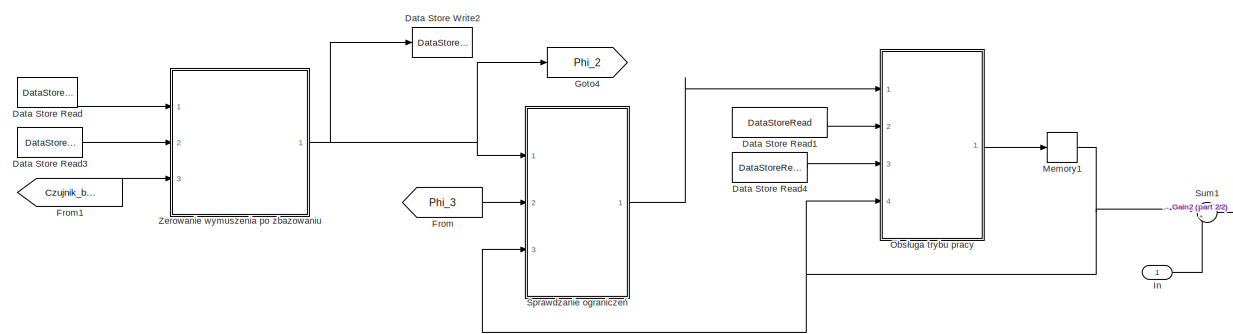
[diagram: Serwo 2 - part 1/2, left side, full height]
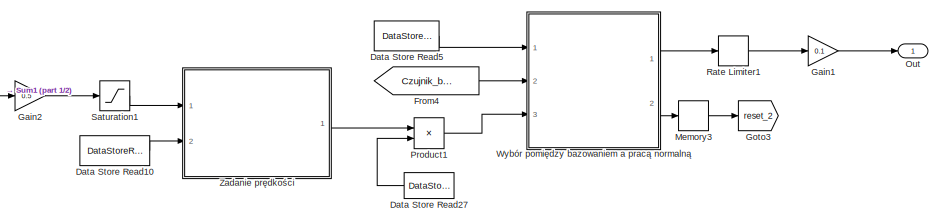
[diagram: Serwo 2 - part 2/2, bottom right region]
BLOCK [SubSystem] Serwo 2
  Ports = [1, 1]
  RequestExecContextInheritance = off
BLOCK [DataStoreRead] Serwo 2/Data Store Read
  DataStoreName = Wym2
  IndexOptions = Index vector (dialog)
  Indices = 1
  OutputSizes = 1
  Ports = [0, 1]
BLOCK [DataStoreRead] Serwo 2/Data Store Read1
  DataStoreName = Tryb_wyzwalany
  IndexOptions = Index vector (dialog)
  Indices = 1
  OutputSizes = 1
  Ports = [0, 1]
BLOCK [DataStoreRead] Serwo 2/Data Store Read10
  DataStoreName = Predkosc
  IndexOptions = Index vector (dialog)
  Indices = 1
  OutputSizes = 1
  Ports = [0, 1]
BLOCK [DataStoreRead] Serwo 2/Data Store Read27
  DataStoreName = Sync2
  IndexOptions = Index vector (dialog)
  Indices = 1
  OutputSizes = 1
  Ports = [0, 1]
BLOCK [DataStoreRead] Serwo 2/Data Store Read3
  DataStoreName = Bazowanie
  IndexOptions = Index vector (dialog)
  Indices = 1
  OutputSizes = 1
  Ports = [0, 1]
BLOCK [DataStoreRead] Serwo 2/Data Store Read4
  DataStoreName = Wyzwalanie
  IndexOptions = Index vector (dialog)
  Indices = 1
  OutputSizes = 1
  Ports = [0, 1]
BLOCK [DataStoreRead] Serwo 2/Data Store Read5
  DataStoreName = Bazowanie
  IndexOptions = Index vector (dialog)
  Indices = 1
  OutputSizes = 1
  Ports = [0, 1]
BLOCK [DataStoreWrite] Serwo 2/Data Store Write2
  DataStoreName = Wym2
  IndexOptions = Index vector (dialog)
  Indices = 1
  OutputSizes = 1
  Ports = [1]
BLOCK [From] Serwo 2/From
  GotoTag = Phi_3
  TagVisibility = global
BLOCK [From] Serwo 2/From1
  GotoTag = Czujnik_bazowy_2
  TagVisibility = global
BLOCK [From] Serwo 2/From4
  GotoTag = Czujnik_bazowy_2
  TagVisibility = global
BLOCK [Gain] Serwo 2/Gain1
  Gain = 0.1
BLOCK [Gain] Serwo 2/Gain2
  Gain = 0.5
BLOCK [Goto] Serwo 2/Goto3
  GotoTag = reset_2
  TagVisibility = global
BLOCK [Goto] Serwo 2/Goto4
  GotoTag = Phi_2
  TagVisibility = global
BLOCK [Inport] Serwo 2/In
BLOCK [Memory] Serwo 2/Memory1
BLOCK [Memory] Serwo 2/Memory3
  InitialCondition = 1
BLOCK [SubSystem] Serwo 2/Obsługa trybu pracy
  ErrorFcn = Stateflow.Translate.translate
  PermitHierarchicalResolution = ExplicitOnly
  Ports = [4, 1]
  RequestExecContextInheritance = off
  SFBlockType = MATLAB Function
  TreatAsAtomicUnit = on
BLOCK [Demux] Serwo 2/Obsługa trybu pracy/ Demux 
  Outputs = 1
  Ports = [1, 1]
BLOCK [S-Function] Serwo 2/Obsługa trybu pracy/ SFunction 
  EnableBusSupport = off
  FunctionName = sf_sfun
  PortCounts = [4 2]
  Ports = [4, 2]
  SFcnIsStateOwnerBlock = off
  SFunctionDeploymentMode = off
  Tag = Stateflow S-Function 2
BLOCK [Terminator] Serwo 2/Obsługa trybu pracy/ Terminator 
BLOCK [Inport] Serwo 2/Obsługa trybu pracy/memo
  Port = 4
BLOCK [Inport] Serwo 2/Obsługa trybu pracy/ster
BLOCK [Inport] Serwo 2/Obsługa trybu pracy/tryb
  Port = 2
BLOCK [Inport] Serwo 2/Obsługa trybu pracy/wyzw
  Port = 3
BLOCK [Outport] Serwo 2/Obsługa trybu pracy/y
BLOCK [Outport] Serwo 2/Out
BLOCK [Product] Serwo 2/Product1
  Ports = [2, 1]
BLOCK [RateLimiter] Serwo 2/Rate Limiter1
  FallingSlewLimit = -50
  RisingSlewLimit = 50
  SampleTimeMode = inherited
BLOCK [Saturate] Serwo 2/Saturation1
  LowerLimit = -3
  UpperLimit = 3
BLOCK [SubSystem] Serwo 2/Sprawdzanie ograniczeń
  ErrorFcn = Stateflow.Translate.translate
  PermitHierarchicalResolution = ExplicitOnly
  Ports = [3, 1]
  RequestExecContextInheritance = off
  SFBlockType = MATLAB Function
  TreatAsAtomicUnit = on
BLOCK [Demux] Serwo 2/Sprawdzanie ograniczeń/ Demux 
  Outputs = 1
  Ports = [1, 1]
BLOCK [S-Function] Serwo 2/Sprawdzanie ograniczeń/ SFunction 
  EnableBusSupport = off
  FunctionName = sf_sfun
  PortCounts = [3 2]
  Ports = [3, 2]
  SFcnIsStateOwnerBlock = off
  SFunctionDeploymentMode = off
  Tag = Stateflow S-Function 5
BLOCK [Terminator] Serwo 2/Sprawdzanie ograniczeń/ Terminator 
BLOCK [Inport] Serwo 2/Sprawdzanie ograniczeń/memo
  Port = 3
BLOCK [Inport] Serwo 2/Sprawdzanie ograniczeń/phi
  Port = 2
BLOCK [Inport] Serwo 2/Sprawdzanie ograniczeń/wym
BLOCK [Outport] Serwo 2/Sprawdzanie ograniczeń/y
BLOCK [Sum] Serwo 2/Sum1
  Inputs = |+-
  Ports = [2, 1]
BLOCK [SubSystem] Serwo 2/Wybór pomiędzy bazowaniem a pracą normalną
  ErrorFcn = Stateflow.Translate.translate
  PermitHierarchicalResolution = ExplicitOnly
  Ports = [3, 2]
  RequestExecContextInheritance = off
  SFBlockType = MATLAB Function
  TreatAsAtomicUnit = on
BLOCK [Demux] Serwo 2/Wybór pomiędzy bazowaniem a pracą normalną/ Demux 
  Outputs = 1
  Ports = [1, 1]
BLOCK [S-Function] Serwo 2/Wybór pomiędzy bazowaniem a pracą normalną/ SFunction 
  EnableBusSupport = off
  FunctionName = sf_sfun
  PortCounts = [3 3]
  Ports = [3, 3]
  SFcnIsStateOwnerBlock = off
  SFunctionDeploymentMode = off
  Tag = Stateflow S-Function 6
BLOCK [Terminator] Serwo 2/Wybór pomiędzy bazowaniem a pracą normalną/ Terminator 
BLOCK [Inport] Serwo 2/Wybór pomiędzy bazowaniem a pracą normalną/baz
BLOCK [Inport] Serwo 2/Wybór pomiędzy bazowaniem a pracą normalną/czuj
  Port = 2
BLOCK [Outport] Serwo 2/Wybór pomiędzy bazowaniem a pracą normalną/res
  Port = 2
BLOCK [Inport] Serwo 2/Wybór pomiędzy bazowaniem a pracą normalną/ster
  Port = 3
BLOCK [Outport] Serwo 2/Wybór pomiędzy bazowaniem a pracą normalną/y
BLOCK [SubSystem] Serwo 2/Zadanie prędkości
  ErrorFcn = Stateflow.Translate.translate
  PermitHierarchicalResolution = ExplicitOnly
  Ports = [2, 1]
  RequestExecContextInheritance = off
  SFBlockType = MATLAB Function
  TreatAsAtomicUnit = on
BLOCK [Demux] Serwo 2/Zadanie prędkości/ Demux 
  Outputs = 1
  Ports = [1, 1]
BLOCK [S-Function] Serwo 2/Zadanie prędkości/ SFunction 
  EnableBusSupport = off
  FunctionName = sf_sfun
  PortCounts = [2 2]
  Ports = [2, 2]
  SFcnIsStateOwnerBlock = off
  SFunctionDeploymentMode = off
  Tag = Stateflow S-Function 16
BLOCK [Terminator] Serwo 2/Zadanie prędkości/ Terminator 
BLOCK [Inport] Serwo 2/Zadanie prędkości/pred
  Port = 2
BLOCK [Inport] Serwo 2/Zadanie prędkości/ster
BLOCK [Outport] Serwo 2/Zadanie prędkości/y
BLOCK [SubSystem] Serwo 2/Zerowanie wymuszenia po zbazowaniu
  ErrorFcn = Stateflow.Translate.translate
  PermitHierarchicalResolution = ExplicitOnly
  Ports = [3, 1]
  RequestExecContextInheritance = off
  SFBlockType = MATLAB Function
  TreatAsAtomicUnit = on
BLOCK [Demux] Serwo 2/Zerowanie wymuszenia po zbazowaniu/ Demux 
  Outputs = 1
  Ports = [1, 1]
BLOCK [S-Function] Serwo 2/Zerowanie wymuszenia po zbazowaniu/ SFunction 
  EnableBusSupport = off
  FunctionName = sf_sfun
  PortCounts = [3 2]
  Ports = [3, 2]
  SFcnIsStateOwnerBlock = off
  SFunctionDeploymentMode = off
  Tag = Stateflow S-Function 17
BLOCK [Terminator] Serwo 2/Zerowanie wymuszenia po zbazowaniu/ Terminator 
BLOCK [Inport] Serwo 2/Zerowanie wymuszenia po zbazowaniu/baz
  Port = 2
BLOCK [Inport] Serwo 2/Zerowanie wymuszenia po zbazowaniu/czuj
  Port = 3
BLOCK [Inport] Serwo 2/Zerowanie wymuszenia po zbazowaniu/wym
BLOCK [Outport] Serwo 2/Zerowanie wymuszenia po zbazowaniu/y
BLOCK [SubSystem] Serwo 3
  Ports = [1, 1]
  RequestExecContextInheritance = off
BLOCK [DataStoreRead] Serwo 3/Data Store Read
  DataStoreName = Wym3
  IndexOptions = Index vector (dialog)
  Indices = 1
  OutputSizes = 1
  Ports = [0, 1]
BLOCK [DataStoreRead] Serwo 3/Data Store Read1
  DataStoreName = Tryb_wyzwalany
  IndexOptions = Index vector (dialog)
  Indices = 1
  OutputSizes = 1
  Ports = [0, 1]
BLOCK [DataStoreRead] Serwo 3/Data Store Read10
  DataStoreName = Predkosc
  IndexOptions = Index vector (dialog)
  Indices = 1
  OutputSizes = 1
  Ports = [0, 1]
BLOCK [DataStoreRead] Serwo 3/Data Store Read27
  DataStoreName = Sync3
  IndexOptions = Index vector (dialog)
  Indices = 1
  OutputSizes = 1
  Ports = [0, 1]
BLOCK [DataStoreRead] Serwo 3/Data Store Read3
  DataStoreName = Bazowanie
  IndexOptions = Index vector (dialog)
  Indices = 1
  OutputSizes = 1
  Ports = [0, 1]
BLOCK [DataStoreRead] Serwo 3/Data Store Read4
  DataStoreName = Wyzwalanie
  IndexOptions = Index vector (dialog)
  Indices = 1
  OutputSizes = 1
  Ports = [0, 1]
BLOCK [DataStoreRead] Serwo 3/Data Store Read5
  DataStoreName = Bazowanie
  IndexOptions = Index vector (dialog)
  Indices = 1
  OutputSizes = 1
  Ports = [0, 1]
BLOCK [DataStoreWrite] Serwo 3/Data Store Write2
  DataStoreName = Wym3
  IndexOptions = Index vector (dialog)
  Indices = 1
  OutputSizes = 1
  Ports = [1]
BLOCK [From] Serwo 3/From
  GotoTag = Phi_2
  TagVisibility = global
BLOCK [From] Serwo 3/From1
  GotoTag = Czujnik_bazowy_3
  TagVisibility = global
BLOCK [From] Serwo 3/From4
  GotoTag = Czujnik_bazowy_3
  TagVisibility = global
BLOCK [Gain] Serwo 3/Gain1
  Gain = 0.1
BLOCK [Gain] Serwo 3/Gain2
  Gain = 0.5
BLOCK [Goto] Serwo 3/Goto3
  GotoTag = reset_3
  TagVisibility = global
BLOCK [Goto] Serwo 3/Goto4
  GotoTag = Phi_3
  TagVisibility = global
BLOCK [Inport] Serwo 3/In
BLOCK [Memory] Serwo 3/Memory1
BLOCK [Memory] Serwo 3/Memory3
  InitialCondition = 1
BLOCK [SubSystem] Serwo 3/Obsługa trybu pracy
  ErrorFcn = Stateflow.Translate.translate
  PermitHierarchicalResolution = ExplicitOnly
  Ports = [4, 1]
  RequestExecContextInheritance = off
  SFBlockType = MATLAB Function
  TreatAsAtomicUnit = on
BLOCK [Demux] Serwo 3/Obsługa trybu pracy/ Demux 
  Outputs = 1
  Ports = [1, 1]
BLOCK [S-Function] Serwo 3/Obsługa trybu pracy/ SFunction 
  EnableBusSupport = off
  FunctionName = sf_sfun
  PortCounts = [4 2]
  Ports = [4, 2]
  SFcnIsStateOwnerBlock = off
  SFunctionDeploymentMode = off
  Tag = Stateflow S-Function 7
BLOCK [Terminator] Serwo 3/Obsługa trybu pracy/ Terminator 
BLOCK [Inport] Serwo 3/Obsługa trybu pracy/memo
  Port = 4
BLOCK [Inport] Serwo 3/Obsługa trybu pracy/ster
BLOCK [Inport] Serwo 3/Obsługa trybu pracy/tryb
  Port = 2
BLOCK [Inport] Serwo 3/Obsługa trybu pracy/wyzw
  Port = 3
BLOCK [Outport] Serwo 3/Obsługa trybu pracy/y
BLOCK [Outport] Serwo 3/Out
BLOCK [Product] Serwo 3/Product
  Ports = [2, 1]
BLOCK [RateLimiter] Serwo 3/Rate Limiter1
  FallingSlewLimit = -50
  RisingSlewLimit = 50
  SampleTimeMode = inherited
BLOCK [Saturate] Serwo 3/Saturation1
  LowerLimit = -3
  UpperLimit = 3
BLOCK [SubSystem] Serwo 3/Sprawdzanie ograniczeń
  ErrorFcn = Stateflow.Translate.translate
  PermitHierarchicalResolution = ExplicitOnly
  Ports = [3, 1]
  RequestExecContextInheritance = off
  SFBlockType = MATLAB Function
  TreatAsAtomicUnit = on
BLOCK [Demux] Serwo 3/Sprawdzanie ograniczeń/ Demux 
  Outputs = 1
  Ports = [1, 1]
BLOCK [S-Function] Serwo 3/Sprawdzanie ograniczeń/ SFunction 
  EnableBusSupport = off
  FunctionName = sf_sfun
  PortCounts = [3 2]
  Ports = [3, 2]
  SFcnIsStateOwnerBlock = off
  SFunctionDeploymentMode = off
  Tag = Stateflow S-Function 8
BLOCK [Terminator] Serwo 3/Sprawdzanie ograniczeń/ Terminator 
BLOCK [Inport] Serwo 3/Sprawdzanie ograniczeń/memo
  Port = 3
BLOCK [Inport] Serwo 3/Sprawdzanie ograniczeń/phi
  Port = 2
BLOCK [Inport] Serwo 3/Sprawdzanie ograniczeń/wym
BLOCK [Outport] Serwo 3/Sprawdzanie ograniczeń/y
BLOCK [Sum] Serwo 3/Sum1
  Inputs = |+-
  Ports = [2, 1]
BLOCK [SubSystem] Serwo 3/Wybór pomiędzy bazowaniem a pracą normalną
  ErrorFcn = Stateflow.Translate.translate
  PermitHierarchicalResolution = ExplicitOnly
  Ports = [3, 2]
  RequestExecContextInheritance = off
  SFBlockType = MATLAB Function
  TreatAsAtomicUnit = on
BLOCK [Demux] Serwo 3/Wybór pomiędzy bazowaniem a pracą normalną/ Demux 
  Outputs = 1
  Ports = [1, 1]
BLOCK [S-Function] Serwo 3/Wybór pomiędzy bazowaniem a pracą normalną/ SFunction 
  EnableBusSupport = off
  FunctionName = sf_sfun
  PortCounts = [3 3]
  Ports = [3, 3]
  SFcnIsStateOwnerBlock = off
  SFunctionDeploymentMode = off
  Tag = Stateflow S-Function 9
BLOCK [Terminator] Serwo 3/Wybór pomiędzy bazowaniem a pracą normalną/ Terminator 
BLOCK [Inport] Serwo 3/Wybór pomiędzy bazowaniem a pracą normalną/baz
BLOCK [Inport] Serwo 3/Wybór pomiędzy bazowaniem a pracą normalną/czuj
  Port = 2
BLOCK [Outport] Serwo 3/Wybór pomiędzy bazowaniem a pracą normalną/res
  Port = 2
BLOCK [Inport] Serwo 3/Wybór pomiędzy bazowaniem a pracą normalną/ster
  Port = 3
BLOCK [Outport] Serwo 3/Wybór pomiędzy bazowaniem a pracą normalną/y
BLOCK [SubSystem] Serwo 3/Zadanie prędkości
  ErrorFcn = Stateflow.Translate.translate
  PermitHierarchicalResolution = ExplicitOnly
  Ports = [2, 1]
  RequestExecContextInheritance = off
  SFBlockType = MATLAB Function
  TreatAsAtomicUnit = on
BLOCK [Demux] Serwo 3/Zadanie prędkości/ Demux 
  Outputs = 1
  Ports = [1, 1]
BLOCK [S-Function] Serwo 3/Zadanie prędkości/ SFunction 
  EnableBusSupport = off
  FunctionName = sf_sfun
  PortCounts = [2 2]
  Ports = [2, 2]
  SFcnIsStateOwnerBlock = off
  SFunctionDeploymentMode = off
  Tag = Stateflow S-Function 18
BLOCK [Terminator] Serwo 3/Zadanie prędkości/ Terminator 
BLOCK [Inport] Serwo 3/Zadanie prędkości/pred
  Port = 2
BLOCK [Inport] Serwo 3/Zadanie prędkości/ster
BLOCK [Outport] Serwo 3/Zadanie prędkości/y
BLOCK [SubSystem] Serwo 3/Zerowanie wymuszenia po zbazowaniu
  ErrorFcn = Stateflow.Translate.translate
  PermitHierarchicalResolution = ExplicitOnly
  Ports = [3, 1]
  RequestExecContextInheritance = off
  SFBlockType = MATLAB Function
  TreatAsAtomicUnit = on
BLOCK [Demux] Serwo 3/Zerowanie wymuszenia po zbazowaniu/ Demux 
  Outputs = 1
  Ports = [1, 1]
BLOCK [S-Function] Serwo 3/Zerowanie wymuszenia po zbazowaniu/ SFunction 
  EnableBusSupport = off
  FunctionName = sf_sfun
  PortCounts = [3 2]
  Ports = [3, 2]
  SFcnIsStateOwnerBlock = off
  SFunctionDeploymentMode = off
  Tag = Stateflow S-Function 19
BLOCK [Terminator] Serwo 3/Zerowanie wymuszenia po zbazowaniu/ Terminator 
BLOCK [Inport] Serwo 3/Zerowanie wymuszenia po zbazowaniu/baz
  Port = 2
BLOCK [Inport] Serwo 3/Zerowanie wymuszenia po zbazowaniu/czuj
  Port = 3
BLOCK [Inport] Serwo 3/Zerowanie wymuszenia po zbazowaniu/wym
BLOCK [Outport] Serwo 3/Zerowanie wymuszenia po zbazowaniu/y
BLOCK [Sum] Sum1
  Inputs = |-+
  Ports = [2, 1]
BLOCK [Sum] Sum3
  Inputs = |-+
  Ports = [2, 1]
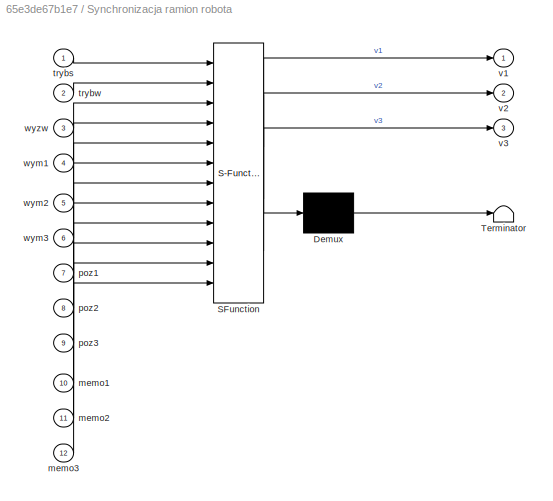
BLOCK [SubSystem] Synchronizacja ramion robota
  ErrorFcn = Stateflow.Translate.translate
  PermitHierarchicalResolution = ExplicitOnly
  Ports = [12, 3]
  RequestExecContextInheritance = off
  SFBlockType = MATLAB Function
  TreatAsAtomicUnit = on
BLOCK [Demux] Synchronizacja ramion robota/ Demux 
  Outputs = 1
  Ports = [1, 1]
BLOCK [S-Function] Synchronizacja ramion robota/ SFunction 
  EnableBusSupport = off
  FunctionName = sf_sfun
  PortCounts = [12 4]
  Ports = [12, 4]
  SFcnIsStateOwnerBlock = off
  SFunctionDeploymentMode = off
  Tag = Stateflow S-Function 10
BLOCK [Terminator] Synchronizacja ramion robota/ Terminator 
BLOCK [Inport] Synchronizacja ramion robota/memo1
  Port = 10
BLOCK [Inport] Synchronizacja ramion robota/memo2
  Port = 11
BLOCK [Inport] Synchronizacja ramion robota/memo3
  Port = 12
BLOCK [Inport] Synchronizacja ramion robota/poz1
  Port = 7
BLOCK [Inport] Synchronizacja ramion robota/poz2
  Port = 8
BLOCK [Inport] Synchronizacja ramion robota/poz3
  Port = 9
BLOCK [Inport] Synchronizacja ramion robota/trybs
BLOCK [Inport] Synchronizacja ramion robota/trybw
  Port = 2
BLOCK [Outport] Synchronizacja ramion robota/v1
BLOCK [Outport] Synchronizacja ramion robota/v2
  Port = 2
BLOCK [Outport] Synchronizacja ramion robota/v3
  Port = 3
BLOCK [Inport] Synchronizacja ramion robota/wym1
  Port = 4
BLOCK [Inport] Synchronizacja ramion robota/wym2
  Port = 5
BLOCK [Inport] Synchronizacja ramion robota/wym3
  Port = 6
BLOCK [Inport] Synchronizacja ramion robota/wyzw
  Port = 3
BLOCK [Terminator] Terminator_1
BLOCK [Terminator] Terminator_4
BLOCK [SubSystem] Wyłącznik bazowania
  ErrorFcn = Stateflow.Translate.translate
  PermitHierarchicalResolution = ExplicitOnly
  Ports = [7, 1]
  RequestExecContextInheritance = off
  SFBlockType = MATLAB Function
  TreatAsAtomicUnit = on
BLOCK [Demux] Wyłącznik bazowania/ Demux 
  Outputs = 1
  Ports = [1, 1]
BLOCK [S-Function] Wyłącznik bazowania/ SFunction 
  EnableBusSupport = off
  FunctionName = sf_sfun
  PortCounts = [7 2]
  Ports = [7, 2]
  SFcnIsStateOwnerBlock = off
  SFunctionDeploymentMode = off
  Tag = Stateflow S-Function 4
BLOCK [Terminator] Wyłącznik bazowania/ Terminator 
BLOCK [Inport] Wyłącznik bazowania/baz
BLOCK [Inport] Wyłącznik bazowania/czuj1
  Port = 2
BLOCK [Inport] Wyłącznik bazowania/czuj2
  Port = 3
BLOCK [Inport] Wyłącznik bazowania/czuj3
  Port = 4
BLOCK [Inport] Wyłącznik bazowania/wym1
  Port = 5
BLOCK [Inport] Wyłącznik bazowania/wym2
  Port = 6
BLOCK [Inport] Wyłącznik bazowania/wym3
  Port = 7
BLOCK [Outport] Wyłącznik bazowania/y
BLOCK [SubSystem] Wyłącznik wyzwalania
  ErrorFcn = Stateflow.Translate.translate
  PermitHierarchicalResolution = ExplicitOnly
  Ports = [8, 1]
  RequestExecContextInheritance = off
  SFBlockType = MATLAB Function
  TreatAsAtomicUnit = on
BLOCK [Demux] Wyłącznik wyzwalania/ Demux 
  Outputs = 1
  Ports = [1, 1]
BLOCK [S-Function] Wyłącznik wyzwalania/ SFunction 
  EnableBusSupport = off
  FunctionName = sf_sfun
  PortCounts = [8 2]
  Ports = [8, 2]
  SFcnIsStateOwnerBlock = off
  SFunctionDeploymentMode = off
  Tag = Stateflow S-Function 1
BLOCK [Terminator] Wyłącznik wyzwalania/ Terminator 
BLOCK [Inport] Wyłącznik wyzwalania/poz1
  Port = 6
BLOCK [Inport] Wyłącznik wyzwalania/poz2
  Port = 7
BLOCK [Inport] Wyłącznik wyzwalania/poz3
  Port = 8
BLOCK [Inport] Wyłącznik wyzwalania/tryb
BLOCK [Inport] Wyłącznik wyzwalania/wym1
  Port = 3
BLOCK [Inport] Wyłącznik wyzwalania/wym2
  Port = 4
BLOCK [Inport] Wyłącznik wyzwalania/wym3
  Port = 5
BLOCK [Inport] Wyłącznik wyzwalania/wyzw
  Port = 2
BLOCK [Outport] Wyłącznik wyzwalania/y
BLOCK [SubSystem] Zadanie kinematyki prostej
  ErrorFcn = Stateflow.Translate.translate
  PermitHierarchicalResolution = ExplicitOnly
  Ports = [3, 3]
  RequestExecContextInheritance = off
  SFBlockType = MATLAB Function
  TreatAsAtomicUnit = on
BLOCK [Demux] Zadanie kinematyki prostej/ Demux 
  Outputs = 1
  Ports = [1, 1]
BLOCK [S-Function] Zadanie kinematyki prostej/ SFunction 
  EnableBusSupport = off
  FunctionName = sf_sfun
  PortCounts = [3 4]
  Ports = [3, 4]
  SFcnIsStateOwnerBlock = off
  SFunctionDeploymentMode = off
  Tag = Stateflow S-Function 11
BLOCK [Terminator] Zadanie kinematyki prostej/ Terminator 
BLOCK [Outport] Zadanie kinematyki prostej/dx
BLOCK [Outport] Zadanie kinematyki prostej/dy
  Port = 2
BLOCK [Outport] Zadanie kinematyki prostej/dz
  Port = 3
BLOCK [Inport] Zadanie kinematyki prostej/pos1
BLOCK [Inport] Zadanie kinematyki prostej/pos2
  Port = 2
BLOCK [Inport] Zadanie kinematyki prostej/pos3
  Port = 3
LINE Constant1:1 -> Sum1:2
LINE Constant3:1 -> Sum3:2
LINE Constant5:1 -> Position 4:2
LINE Constant6:1 -> Position 5:2
LINE DS2201ADC_B1:1 -> Demux:1
LINE DS2201ADC_B1:2 -> Demux2:1
LINE DS2201ADC_B1:3 -> Position 5:1
LINE DS2201ADC_B1:4 -> Terminator_4:1
LINE DS2201ADC_B1:5 -> Terminator_1:1
LINE DS2201IN_B1:1 -> Demux1:1
LINE Data Store Read10:1 -> Synchronizacja ramion robota:3
LINE Data Store Read11:1 -> Synchronizacja ramion robota:4
LINE Data Store Read12:1 -> Synchronizacja ramion robota:5
LINE Data Store Read13:1 -> Synchronizacja ramion robota:6
LINE Data Store Read14:1 -> Synchronizacja ramion robota:1
LINE Data Store Read15:1 -> Zadanie kinematyki prostej:1
LINE Data Store Read16:1 -> Wyłącznik wyzwalania:6
LINE Data Store Read17:1 -> Wyłącznik wyzwalania:8
LINE Data Store Read18:1 -> Wyłącznik wyzwalania:7
LINE Data Store Read19:1 -> Synchronizacja ramion robota:7
LINE Data Store Read1:1 -> Wyłącznik wyzwalania:4
LINE Data Store Read20:1 -> Synchronizacja ramion robota:9
LINE Data Store Read21:1 -> Synchronizacja ramion robota:8
LINE Data Store Read22:1 -> Zadanie kinematyki prostej:3
LINE Data Store Read23:1 -> Zadanie kinematyki prostej:2
LINE Data Store Read24:1 -> Synchronizacja ramion robota:10
LINE Data Store Read25:1 -> Synchronizacja ramion robota:11
LINE Data Store Read26:1 -> Synchronizacja ramion robota:12
LINE Data Store Read2:1 -> Wyłącznik wyzwalania:5
LINE Data Store Read3:1 -> Wyłącznik wyzwalania:1
LINE Data Store Read4:1 -> Wyłącznik bazowania:1
LINE Data Store Read5:1 -> Wyłącznik wyzwalania:2
LINE Data Store Read6:1 -> Wyłącznik bazowania:5
LINE Data Store Read7:1 -> Wyłącznik bazowania:6
LINE Data Store Read8:1 -> Wyłącznik bazowania:7
LINE Data Store Read9:1 -> Synchronizacja ramion robota:2
LINE Data Store Read:1 -> Wyłącznik wyzwalania:3
LINE Demux1:1 -> Goto1:1
LINE Demux1:2 -> Goto2:1
LINE Demux1:3 -> Goto3:1
LINE Demux2:1 -> Position 3:1
LINE Demux2:2 -> Position 4:1
LINE Demux:1 -> Position 1:1
LINE Demux:2 -> Position 2:1
LINE From10:1 -> Wyłącznik bazowania:4
LINE From1:1 -> Position 1:2
LINE From6:1 -> Position 2:2
LINE From7:1 -> Position 3:2
LINE From8:1 -> Wyłącznik bazowania:2
LINE From9:1 -> Wyłącznik bazowania:3
LINE Gain1:1 -> DS2201DAC_B1:5
LINE Gain2:1 -> Saturation1:1
LINE Gain6:1 -> DS2201DAC_B1:4
LINE Gain7:1 -> Saturation3:1
LINE Ground_2:1 -> DS2201DAC_B1:6
LINE Ground_3:1 -> DS2201DAC_B1:7
LINE Ground_4:1 -> DS2201DAC_B1:8
LINE Memory1:1 -> Data Store Write8:1
LINE Memory2:1 -> Data Store Write12:1
LINE Memory:1 -> Data Store Write11:1
LINE Position 1/Filters 1/Analog Butterworth LP Filter/Analog Butterworth LP Filter:1 -> Position 1/Filters 1/Analog Butterworth LP Filter/Out1:1
LINE Position 1/Filters 1/Analog Butterworth LP Filter/In1:1 -> Position 1/Filters 1/Analog Butterworth LP Filter/Analog Butterworth LP Filter:1
LINE Position 1/Filters 1/Analog Butterworth LP Filter1/Analog Butterworth LP Filter1:1 -> Position 1/Filters 1/Analog Butterworth LP Filter1/Out1:1
LINE Position 1/Filters 1/Analog Butterworth LP Filter1/In1:1 -> Position 1/Filters 1/Analog Butterworth LP Filter1/Analog Butterworth LP Filter1:1
LINE Position 1/Filters 1/Analog Butterworth LP Filter1:1 -> Position 1/Filters 1/Cos:1
LINE Position 1/Filters 1/Analog Butterworth LP Filter:1 -> Position 1/Filters 1/Sin:1
LINE Position 1/Filters 1/Demux:1 -> Position 1/Filters 1/Analog Butterworth LP Filter:1
LINE Position 1/Filters 1/Demux:2 -> Position 1/Filters 1/Analog Butterworth LP Filter1:1
LINE Position 1/Filters 1/Sin && Cos:1 -> Position 1/Filters 1/Demux:1
LINE Position 1/Filters 1:1 -> Position 1/Position Calculation 1:1
LINE Position 1/Filters 1:2 -> Position 1/Position Calculation 1:2
NET Position 1/Position Calculation 1/Atan2:1 -> Position 1/Position Calculation 1/Derivative:1, Position 1/Position Calculation 1/Init Angle:3, Position 1/Position Calculation 1/Sum1:2
LINE Position 1/Position Calculation 1/Conversion Rad to Deg:1 -> Position 1/Position Calculation 1/Position:1
LINE Position 1/Position Calculation 1/Conversion Rotation to Angle:1 -> Position 1/Position Calculation 1/Sum1:1
LINE Position 1/Position Calculation 1/Cos:1 -> Position 1/Position Calculation 1/Mux:2
LINE Position 1/Position Calculation 1/Dead Zone:1 -> Position 1/Position Calculation 1/Saturation:1
LINE Position 1/Position Calculation 1/Derivative:1 -> Position 1/Position Calculation 1/Dead Zone:1
LINE Position 1/Position Calculation 1/Gear:1 -> Position 1/Position Calculation 1/Conversion Rad to Deg:1
NET Position 1/Position Calculation 1/Init Angle:1 -> Position 1/Position Calculation 1/Memory1:1, Position 1/Position Calculation 1/Sum1:3
LINE Position 1/Position Calculation 1/Memory1:1 -> Position 1/Position Calculation 1/Init Angle:1
LINE Position 1/Position Calculation 1/Memory:1 -> Position 1/Position Calculation 1/Sum:1
LINE Position 1/Position Calculation 1/Mux:1 -> Position 1/Position Calculation 1/Atan2:1
NET Position 1/Position Calculation 1/Product:1 -> Position 1/Position Calculation 1/Conversion Rotation to Angle:1, Position 1/Position Calculation 1/Memory:1
NET Position 1/Position Calculation 1/Reset (Impulse):1 -> Position 1/Position Calculation 1/Init Angle:2, Position 1/Position Calculation 1/Product:2
LINE Position 1/Position Calculation 1/Saturation:1 -> Position 1/Position Calculation 1/Sum:2
LINE Position 1/Position Calculation 1/Sin:1 -> Position 1/Position Calculation 1/Mux:1
LINE Position 1/Position Calculation 1/Sum1:1 -> Position 1/Position Calculation 1/Gear:1
LINE Position 1/Position Calculation 1/Sum:1 -> Position 1/Position Calculation 1/Product:1
LINE Position 1/Position Calculation 1:1 -> Position 1/Ramie1:1
LINE Position 1/Reset 1:1 -> Position 1/Position Calculation 1:3
LINE Position 1/Sin && Cos1:1 -> Position 1/Filters 1:1
NET Position 1:1 -> Data Store Write2:1, Serwo 1:1
LINE Position 2/Filters 2/Analog Butterworth LP Filter/Analog Butterworth LP Filter:1 -> Position 2/Filters 2/Analog Butterworth LP Filter/Out1:1
LINE Position 2/Filters 2/Analog Butterworth LP Filter/In1:1 -> Position 2/Filters 2/Analog Butterworth LP Filter/Analog Butterworth LP Filter:1
LINE Position 2/Filters 2/Analog Butterworth LP Filter1/Analog Butterworth LP Filter1:1 -> Position 2/Filters 2/Analog Butterworth LP Filter1/Out1:1
LINE Position 2/Filters 2/Analog Butterworth LP Filter1/In1:1 -> Position 2/Filters 2/Analog Butterworth LP Filter1/Analog Butterworth LP Filter1:1
LINE Position 2/Filters 2/Analog Butterworth LP Filter1:1 -> Position 2/Filters 2/Cos:1
LINE Position 2/Filters 2/Analog Butterworth LP Filter:1 -> Position 2/Filters 2/Sin:1
LINE Position 2/Filters 2/Demux:1 -> Position 2/Filters 2/Analog Butterworth LP Filter:1
LINE Position 2/Filters 2/Demux:2 -> Position 2/Filters 2/Analog Butterworth LP Filter1:1
LINE Position 2/Filters 2/Sin && Cos:1 -> Position 2/Filters 2/Demux:1
LINE Position 2/Filters 2:1 -> Position 2/Position Calculation 2:1
LINE Position 2/Filters 2:2 -> Position 2/Position Calculation 2:2
NET Position 2/Position Calculation 2/Atan2:1 -> Position 2/Position Calculation 2/Derivative:1, Position 2/Position Calculation 2/Init Angle:3, Position 2/Position Calculation 2/Sum1:2
LINE Position 2/Position Calculation 2/Conversion Rad to Deg:1 -> Position 2/Position Calculation 2/Position:1
LINE Position 2/Position Calculation 2/Conversion Rotation to Angle:1 -> Position 2/Position Calculation 2/Sum1:1
LINE Position 2/Position Calculation 2/Cos:1 -> Position 2/Position Calculation 2/Mux:2
LINE Position 2/Position Calculation 2/Dead Zone:1 -> Position 2/Position Calculation 2/Saturation:1
LINE Position 2/Position Calculation 2/Derivative:1 -> Position 2/Position Calculation 2/Dead Zone:1
LINE Position 2/Position Calculation 2/Gear:1 -> Position 2/Position Calculation 2/Conversion Rad to Deg:1
NET Position 2/Position Calculation 2/Init Angle:1 -> Position 2/Position Calculation 2/Memory1:1, Position 2/Position Calculation 2/Sum1:3
LINE Position 2/Position Calculation 2/Memory1:1 -> Position 2/Position Calculation 2/Init Angle:1
LINE Position 2/Position Calculation 2/Memory:1 -> Position 2/Position Calculation 2/Sum:1
LINE Position 2/Position Calculation 2/Mux:1 -> Position 2/Position Calculation 2/Atan2:1
NET Position 2/Position Calculation 2/Product:1 -> Position 2/Position Calculation 2/Conversion Rotation to Angle:1, Position 2/Position Calculation 2/Memory:1
NET Position 2/Position Calculation 2/Reset (Impulse):1 -> Position 2/Position Calculation 2/Init Angle:2, Position 2/Position Calculation 2/Product:2
LINE Position 2/Position Calculation 2/Saturation:1 -> Position 2/Position Calculation 2/Sum:2
LINE Position 2/Position Calculation 2/Sin:1 -> Position 2/Position Calculation 2/Mux:1
LINE Position 2/Position Calculation 2/Sum1:1 -> Position 2/Position Calculation 2/Gear:1
LINE Position 2/Position Calculation 2/Sum:1 -> Position 2/Position Calculation 2/Product:1
LINE Position 2/Position Calculation 2:1 -> Position 2/Ramie2:1
LINE Position 2/Reset 2:1 -> Position 2/Position Calculation 2:3
LINE Position 2/Sin && Cos2:1 -> Position 2/Filters 2:1
NET Position 2:1 -> Data Store Write3:1, Serwo 2:1
LINE Position 3/Filters 3/Analog Butterworth LP Filter/Analog Butterworth LP Filter:1 -> Position 3/Filters 3/Analog Butterworth LP Filter/Out1:1
LINE Position 3/Filters 3/Analog Butterworth LP Filter/In1:1 -> Position 3/Filters 3/Analog Butterworth LP Filter/Analog Butterworth LP Filter:1
LINE Position 3/Filters 3/Analog Butterworth LP Filter1/Analog Butterworth LP Filter1:1 -> Position 3/Filters 3/Analog Butterworth LP Filter1/Out1:1
LINE Position 3/Filters 3/Analog Butterworth LP Filter1/In1:1 -> Position 3/Filters 3/Analog Butterworth LP Filter1/Analog Butterworth LP Filter1:1
LINE Position 3/Filters 3/Analog Butterworth LP Filter1:1 -> Position 3/Filters 3/Cos:1
LINE Position 3/Filters 3/Analog Butterworth LP Filter:1 -> Position 3/Filters 3/Sin:1
LINE Position 3/Filters 3/Demux:1 -> Position 3/Filters 3/Analog Butterworth LP Filter:1
LINE Position 3/Filters 3/Demux:2 -> Position 3/Filters 3/Analog Butterworth LP Filter1:1
LINE Position 3/Filters 3/Sin && Cos:1 -> Position 3/Filters 3/Demux:1
LINE Position 3/Filters 3:1 -> Position 3/Position Calculation 3:1
LINE Position 3/Filters 3:2 -> Position 3/Position Calculation 3:2
NET Position 3/Position Calculation 3/Atan2:1 -> Position 3/Position Calculation 3/Derivative:1, Position 3/Position Calculation 3/Init Angle:3, Position 3/Position Calculation 3/Sum1:2
LINE Position 3/Position Calculation 3/Conversion Rad to Deg:1 -> Position 3/Position Calculation 3/Position:1
LINE Position 3/Position Calculation 3/Conversion Rotation to Angle:1 -> Position 3/Position Calculation 3/Sum1:1
LINE Position 3/Position Calculation 3/Cos:1 -> Position 3/Position Calculation 3/Mux:2
LINE Position 3/Position Calculation 3/Dead Zone:1 -> Position 3/Position Calculation 3/Saturation:1
LINE Position 3/Position Calculation 3/Derivative:1 -> Position 3/Position Calculation 3/Dead Zone:1
LINE Position 3/Position Calculation 3/Gear:1 -> Position 3/Position Calculation 3/Conversion Rad to Deg:1
NET Position 3/Position Calculation 3/Init Angle:1 -> Position 3/Position Calculation 3/Memory1:1, Position 3/Position Calculation 3/Sum1:3
LINE Position 3/Position Calculation 3/Memory1:1 -> Position 3/Position Calculation 3/Init Angle:1
LINE Position 3/Position Calculation 3/Memory:1 -> Position 3/Position Calculation 3/Sum:1
LINE Position 3/Position Calculation 3/Mux:1 -> Position 3/Position Calculation 3/Atan2:1
NET Position 3/Position Calculation 3/Product:1 -> Position 3/Position Calculation 3/Conversion Rotation to Angle:1, Position 3/Position Calculation 3/Memory:1
NET Position 3/Position Calculation 3/Reset (Impulse):1 -> Position 3/Position Calculation 3/Init Angle:2, Position 3/Position Calculation 3/Product:2
LINE Position 3/Position Calculation 3/Saturation:1 -> Position 3/Position Calculation 3/Sum:2
LINE Position 3/Position Calculation 3/Sin:1 -> Position 3/Position Calculation 3/Mux:1
LINE Position 3/Position Calculation 3/Sum1:1 -> Position 3/Position Calculation 3/Gear:1
LINE Position 3/Position Calculation 3/Sum:1 -> Position 3/Position Calculation 3/Product:1
LINE Position 3/Position Calculation 3:1 -> Position 3/Ramie3:1
LINE Position 3/Reset 3:1 -> Position 3/Position Calculation 3:3
LINE Position 3/Sin && Cos3:1 -> Position 3/Filters 3:1
NET Position 3:1 -> Data Store Write4:1, Serwo 3:1
LINE Position 4/Filters 4/Analog Butterworth LP Filter/Analog Butterworth LP Filter:1 -> Position 4/Filters 4/Analog Butterworth LP Filter/Out1:1
LINE Position 4/Filters 4/Analog Butterworth LP Filter/In1:1 -> Position 4/Filters 4/Analog Butterworth LP Filter/Analog Butterworth LP Filter:1
LINE Position 4/Filters 4/Analog Butterworth LP Filter1/Analog Butterworth LP Filter1:1 -> Position 4/Filters 4/Analog Butterworth LP Filter1/Out1:1
LINE Position 4/Filters 4/Analog Butterworth LP Filter1/In1:1 -> Position 4/Filters 4/Analog Butterworth LP Filter1/Analog Butterworth LP Filter1:1
LINE Position 4/Filters 4/Analog Butterworth LP Filter1:1 -> Position 4/Filters 4/Cos:1
LINE Position 4/Filters 4/Analog Butterworth LP Filter:1 -> Position 4/Filters 4/Sin:1
LINE Position 4/Filters 4/Demux:1 -> Position 4/Filters 4/Analog Butterworth LP Filter:1
LINE Position 4/Filters 4/Demux:2 -> Position 4/Filters 4/Analog Butterworth LP Filter1:1
LINE Position 4/Filters 4/Sin && Cos:1 -> Position 4/Filters 4/Demux:1
LINE Position 4/Filters 4:1 -> Position 4/Position Calculation 4:1
LINE Position 4/Filters 4:2 -> Position 4/Position Calculation 4:2
NET Position 4/Position Calculation 4/Atan2:1 -> Position 4/Position Calculation 4/Derivative:1, Position 4/Position Calculation 4/Init Angle:3, Position 4/Position Calculation 4/Sum1:2
LINE Position 4/Position Calculation 4/Conversion Rad to Deg:1 -> Position 4/Position Calculation 4/Position:1
LINE Position 4/Position Calculation 4/Conversion Rotation to Angle:1 -> Position 4/Position Calculation 4/Sum1:1
LINE Position 4/Position Calculation 4/Cos:1 -> Position 4/Position Calculation 4/Mux:2
LINE Position 4/Position Calculation 4/Dead Zone:1 -> Position 4/Position Calculation 4/Saturation:1
LINE Position 4/Position Calculation 4/Derivative:1 -> Position 4/Position Calculation 4/Dead Zone:1
LINE Position 4/Position Calculation 4/Gear:1 -> Position 4/Position Calculation 4/Conversion Rad to Deg:1
NET Position 4/Position Calculation 4/Init Angle:1 -> Position 4/Position Calculation 4/Memory1:1, Position 4/Position Calculation 4/Sum1:3
LINE Position 4/Position Calculation 4/Memory1:1 -> Position 4/Position Calculation 4/Init Angle:1
LINE Position 4/Position Calculation 4/Memory:1 -> Position 4/Position Calculation 4/Sum:1
LINE Position 4/Position Calculation 4/Mux:1 -> Position 4/Position Calculation 4/Atan2:1
NET Position 4/Position Calculation 4/Product:1 -> Position 4/Position Calculation 4/Conversion Rotation to Angle:1, Position 4/Position Calculation 4/Memory:1
NET Position 4/Position Calculation 4/Reset (Impulse):1 -> Position 4/Position Calculation 4/Init Angle:2, Position 4/Position Calculation 4/Product:2
LINE Position 4/Position Calculation 4/Saturation:1 -> Position 4/Position Calculation 4/Sum:2
LINE Position 4/Position Calculation 4/Sin:1 -> Position 4/Position Calculation 4/Mux:1
LINE Position 4/Position Calculation 4/Sum1:1 -> Position 4/Position Calculation 4/Gear:1
LINE Position 4/Position Calculation 4/Sum:1 -> Position 4/Position Calculation 4/Product:1
LINE Position 4/Position Calculation 4:1 -> Position 4/Out1:1
LINE Position 4/Reset 4:1 -> Position 4/Position Calculation 4:3
LINE Position 4/Sin && Cos4:1 -> Position 4/Filters 4:1
LINE Position 4:1 -> Sum3:1
LINE Position 5/Filters 5/Analog Butterworth LP Filter/Analog Butterworth LP Filter:1 -> Position 5/Filters 5/Analog Butterworth LP Filter/Out1:1
LINE Position 5/Filters 5/Analog Butterworth LP Filter/In1:1 -> Position 5/Filters 5/Analog Butterworth LP Filter/Analog Butterworth LP Filter:1
LINE Position 5/Filters 5/Analog Butterworth LP Filter1/Analog Butterworth LP Filter1:1 -> Position 5/Filters 5/Analog Butterworth LP Filter1/Out1:1
LINE Position 5/Filters 5/Analog Butterworth LP Filter1/In1:1 -> Position 5/Filters 5/Analog Butterworth LP Filter1/Analog Butterworth LP Filter1:1
LINE Position 5/Filters 5/Analog Butterworth LP Filter1:1 -> Position 5/Filters 5/Cos:1
LINE Position 5/Filters 5/Analog Butterworth LP Filter:1 -> Position 5/Filters 5/Sin:1
LINE Position 5/Filters 5/Demux:1 -> Position 5/Filters 5/Analog Butterworth LP Filter:1
LINE Position 5/Filters 5/Demux:2 -> Position 5/Filters 5/Analog Butterworth LP Filter1:1
LINE Position 5/Filters 5/Sin && Cos:1 -> Position 5/Filters 5/Demux:1
LINE Position 5/Filters 5:1 -> Position 5/Position Calculation 5:1
LINE Position 5/Filters 5:2 -> Position 5/Position Calculation 5:2
NET Position 5/Position Calculation 5/Atan2:1 -> Position 5/Position Calculation 5/Derivative:1, Position 5/Position Calculation 5/Init Angle:3, Position 5/Position Calculation 5/Sum1:2
LINE Position 5/Position Calculation 5/Conversion Rad to Deg:1 -> Position 5/Position Calculation 5/Position:1
LINE Position 5/Position Calculation 5/Conversion Rotation to Angle:1 -> Position 5/Position Calculation 5/Sum1:1
LINE Position 5/Position Calculation 5/Cos:1 -> Position 5/Position Calculation 5/Mux:2
LINE Position 5/Position Calculation 5/Dead Zone:1 -> Position 5/Position Calculation 5/Saturation:1
LINE Position 5/Position Calculation 5/Derivative:1 -> Position 5/Position Calculation 5/Dead Zone:1
LINE Position 5/Position Calculation 5/Gear:1 -> Position 5/Position Calculation 5/Conversion Rad to Deg:1
NET Position 5/Position Calculation 5/Init Angle:1 -> Position 5/Position Calculation 5/Memory1:1, Position 5/Position Calculation 5/Sum1:3
LINE Position 5/Position Calculation 5/Memory1:1 -> Position 5/Position Calculation 5/Init Angle:1
LINE Position 5/Position Calculation 5/Memory:1 -> Position 5/Position Calculation 5/Sum:1
LINE Position 5/Position Calculation 5/Mux:1 -> Position 5/Position Calculation 5/Atan2:1
NET Position 5/Position Calculation 5/Product:1 -> Position 5/Position Calculation 5/Conversion Rotation to Angle:1, Position 5/Position Calculation 5/Memory:1
NET Position 5/Position Calculation 5/Reset (Impulse):1 -> Position 5/Position Calculation 5/Init Angle:2, Position 5/Position Calculation 5/Product:2
LINE Position 5/Position Calculation 5/Saturation:1 -> Position 5/Position Calculation 5/Sum:2
LINE Position 5/Position Calculation 5/Sin:1 -> Position 5/Position Calculation 5/Mux:1
LINE Position 5/Position Calculation 5/Sum1:1 -> Position 5/Position Calculation 5/Gear:1
LINE Position 5/Position Calculation 5/Sum:1 -> Position 5/Position Calculation 5/Product:1
LINE Position 5/Position Calculation 5:1 -> Position 5/Out1:1
LINE Position 5/Reset 5:1 -> Position 5/Position Calculation 5:3
LINE Position 5/Sin && Cos5:1 -> Position 5/Filters 5:1
LINE Position 5:1 -> Sum1:1
LINE Rate Limiter1:1 -> Gain1:1
LINE Rate Limiter:1 -> Gain6:1
LINE Saturation1:1 -> Rate Limiter1:1
LINE Saturation3:1 -> Rate Limiter:1
LINE Serwo 1/Data Store Read27:1 -> Serwo 1/Product:2
LINE Serwo 1/Data Store Read2:1 -> Serwo 1/Obsługa trybu pracy:2
LINE Serwo 1/Data Store Read3:1 -> Serwo 1/Zerowanie wymuszenia po zbazowaniu:2
LINE Serwo 1/Data Store Read4:1 -> Serwo 1/Obsługa trybu pracy:3
LINE Serwo 1/Data Store Read7:1 -> Serwo 1/Wybór pomiędzy bazowaniem a pracą normalną:1
LINE Serwo 1/Data Store Read8:1 -> Serwo 1/Zadanie prędkości:2
LINE Serwo 1/Data Store Read:1 -> Serwo 1/Zerowanie wymuszenia po zbazowaniu:1
LINE Serwo 1/From2:1 -> Serwo 1/Zerowanie wymuszenia po zbazowaniu:3
LINE Serwo 1/From3:1 -> Serwo 1/Wybór pomiędzy bazowaniem a pracą normalną:2
LINE Serwo 1/Gain2:1 -> Serwo 1/Saturation1:1
LINE Serwo 1/Gain4:1 -> Serwo 1/Out:1
NET Serwo 1/Memory1:1 -> Serwo 1/Obsługa trybu pracy:4, Serwo 1/Sprawdzanie ograniczeń:2, Serwo 1/Sum1:1
LINE Serwo 1/Memory3:1 -> Serwo 1/Goto1:1
LINE Serwo 1/Obsługa trybu pracy:1 -> Serwo 1/Memory1:1
LINE Serwo 1/Product:1 -> Serwo 1/Wybór pomiędzy bazowaniem a pracą normalną:3
LINE Serwo 1/Ramie1:1 -> Serwo 1/Sum1:2
LINE Serwo 1/Rate Limiter1:1 -> Serwo 1/Gain4:1
LINE Serwo 1/Saturation1:1 -> Serwo 1/Zadanie prędkości:1
LINE Serwo 1/Sprawdzanie ograniczeń:1 -> Serwo 1/Obsługa trybu pracy:1
LINE Serwo 1/Sum1:1 -> Serwo 1/Gain2:1
LINE Serwo 1/Wybór pomiędzy bazowaniem a pracą normalną:1 -> Serwo 1/Rate Limiter1:1
LINE Serwo 1/Wybór pomiędzy bazowaniem a pracą normalną:2 -> Serwo 1/Memory3:1
LINE Serwo 1/Zadanie prędkości:1 -> Serwo 1/Product:1
NET Serwo 1/Zerowanie wymuszenia po zbazowaniu:1 -> Serwo 1/Data Store Write1:1, Serwo 1/Sprawdzanie ograniczeń:1
LINE Serwo 1:1 -> DS2201DAC_B1:1
LINE Serwo 2/Data Store Read10:1 -> Serwo 2/Zadanie prędkości:2
LINE Serwo 2/Data Store Read1:1 -> Serwo 2/Obsługa trybu pracy:2
LINE Serwo 2/Data Store Read27:1 -> Serwo 2/Product1:2
LINE Serwo 2/Data Store Read3:1 -> Serwo 2/Zerowanie wymuszenia po zbazowaniu:2
LINE Serwo 2/Data Store Read4:1 -> Serwo 2/Obsługa trybu pracy:3
LINE Serwo 2/Data Store Read5:1 -> Serwo 2/Wybór pomiędzy bazowaniem a pracą normalną:1
LINE Serwo 2/Data Store Read:1 -> Serwo 2/Zerowanie wymuszenia po zbazowaniu:1
LINE Serwo 2/From1:1 -> Serwo 2/Zerowanie wymuszenia po zbazowaniu:3
LINE Serwo 2/From4:1 -> Serwo 2/Wybór pomiędzy bazowaniem a pracą normalną:2
LINE Serwo 2/From:1 -> Serwo 2/Sprawdzanie ograniczeń:2
LINE Serwo 2/Gain1:1 -> Serwo 2/Out:1
LINE Serwo 2/Gain2:1 -> Serwo 2/Saturation1:1
LINE Serwo 2/In:1 -> Serwo 2/Sum1:2
NET Serwo 2/Memory1:1 -> Serwo 2/Obsługa trybu pracy:4, Serwo 2/Sprawdzanie ograniczeń:3, Serwo 2/Sum1:1
LINE Serwo 2/Memory3:1 -> Serwo 2/Goto3:1
LINE Serwo 2/Obsługa trybu pracy:1 -> Serwo 2/Memory1:1
LINE Serwo 2/Product1:1 -> Serwo 2/Wybór pomiędzy bazowaniem a pracą normalną:3
LINE Serwo 2/Rate Limiter1:1 -> Serwo 2/Gain1:1
LINE Serwo 2/Saturation1:1 -> Serwo 2/Zadanie prędkości:1
LINE Serwo 2/Sprawdzanie ograniczeń:1 -> Serwo 2/Obsługa trybu pracy:1
LINE Serwo 2/Sum1:1 -> Serwo 2/Gain2:1
LINE Serwo 2/Wybór pomiędzy bazowaniem a pracą normalną:1 -> Serwo 2/Rate Limiter1:1
LINE Serwo 2/Wybór pomiędzy bazowaniem a pracą normalną:2 -> Serwo 2/Memory3:1
LINE Serwo 2/Zadanie prędkości:1 -> Serwo 2/Product1:1
NET Serwo 2/Zerowanie wymuszenia po zbazowaniu:1 -> Serwo 2/Data Store Write2:1, Serwo 2/Goto4:1, Serwo 2/Sprawdzanie ograniczeń:1
LINE Serwo 2:1 -> DS2201DAC_B1:2
LINE Serwo 3/Data Store Read10:1 -> Serwo 3/Zadanie prędkości:2
LINE Serwo 3/Data Store Read1:1 -> Serwo 3/Obsługa trybu pracy:2
LINE Serwo 3/Data Store Read27:1 -> Serwo 3/Product:2
LINE Serwo 3/Data Store Read3:1 -> Serwo 3/Zerowanie wymuszenia po zbazowaniu:2
LINE Serwo 3/Data Store Read4:1 -> Serwo 3/Obsługa trybu pracy:3
LINE Serwo 3/Data Store Read5:1 -> Serwo 3/Wybór pomiędzy bazowaniem a pracą normalną:1
LINE Serwo 3/Data Store Read:1 -> Serwo 3/Zerowanie wymuszenia po zbazowaniu:1
LINE Serwo 3/From1:1 -> Serwo 3/Zerowanie wymuszenia po zbazowaniu:3
LINE Serwo 3/From4:1 -> Serwo 3/Wybór pomiędzy bazowaniem a pracą normalną:2
LINE Serwo 3/From:1 -> Serwo 3/Sprawdzanie ograniczeń:2
LINE Serwo 3/Gain1:1 -> Serwo 3/Out:1
LINE Serwo 3/Gain2:1 -> Serwo 3/Saturation1:1
LINE Serwo 3/In:1 -> Serwo 3/Sum1:2
NET Serwo 3/Memory1:1 -> Serwo 3/Obsługa trybu pracy:4, Serwo 3/Sprawdzanie ograniczeń:3, Serwo 3/Sum1:1
LINE Serwo 3/Memory3:1 -> Serwo 3/Goto3:1
LINE Serwo 3/Obsługa trybu pracy:1 -> Serwo 3/Memory1:1
LINE Serwo 3/Product:1 -> Serwo 3/Wybór pomiędzy bazowaniem a pracą normalną:3
LINE Serwo 3/Rate Limiter1:1 -> Serwo 3/Gain1:1
LINE Serwo 3/Saturation1:1 -> Serwo 3/Zadanie prędkości:1
LINE Serwo 3/Sprawdzanie ograniczeń:1 -> Serwo 3/Obsługa trybu pracy:1
LINE Serwo 3/Sum1:1 -> Serwo 3/Gain2:1
LINE Serwo 3/Wybór pomiędzy bazowaniem a pracą normalną:1 -> Serwo 3/Rate Limiter1:1
LINE Serwo 3/Wybór pomiędzy bazowaniem a pracą normalną:2 -> Serwo 3/Memory3:1
LINE Serwo 3/Zadanie prędkości:1 -> Serwo 3/Product:1
NET Serwo 3/Zerowanie wymuszenia po zbazowaniu:1 -> Serwo 3/Data Store Write2:1, Serwo 3/Goto4:1, Serwo 3/Sprawdzanie ograniczeń:1
LINE Serwo 3:1 -> DS2201DAC_B1:3
LINE Sum1:1 -> Gain2:1
LINE Sum3:1 -> Gain7:1
LINE Synchronizacja ramion robota:1 -> Memory:1
LINE Synchronizacja ramion robota:2 -> Memory1:1
LINE Synchronizacja ramion robota:3 -> Memory2:1
LINE Wyłącznik bazowania:1 -> Data Store Write1:1
LINE Wyłącznik wyzwalania:1 -> Data Store Write:1
LINE Zadanie kinematyki prostej:1 -> Data Store Write5:1
LINE Zadanie kinematyki prostej:2 -> Data Store Write6:1
LINE Zadanie kinematyki prostej:3 -> Data Store Write7:1
note: NET lines group one-source signal fan-out (src -> all destinations, sorted); 1:1 wires keep LINE
CHART Serwo 3/Wybór pomiędzy bazowaniem a pracą normalną states=1 transitions=1
  STATE_LABEL 'eML_blk_kernel()'
  STATE_LABEL 'SCRIPT:\nfunction [y, res] = fcn(baz, czuj, ster)\nif baz && ~czuj\n    y = -0.3;\n    res = 0;\nelse\n    y = ster;\n    res = 1;\nend'
CHART Synchronizacja ramion robota states=1 transitions=1
  STATE_LABEL 'eML_blk_kernel()'
  STATE_LABEL 'SCRIPT:\nfunction [v1, v2, v3] = fcn(trybs, trybw, wyzw, wym1, wym2, wym3, poz1, poz2, poz3, memo1, memo2, memo3)\n% Wyliczanie synchronizacji prędkości przed wyzwoleniem\nif trybs && trybw && ~wyzw\n    angle1 = abs(wym1-poz1);\n    angle2 = abs(wym2-poz2);\n    angle3 = abs(wym3-poz3);\n    if angle1 >= angle2 && angle1 >= angle3\n        v1 = 1;\n        v2 = angle2/angle1;\n        v3 = angle3/angle1;\n ...<+588ch>'
CHART Zadanie kinematyki prostej states=1 transitions=1
  STATE_LABEL 'eML_blk_kernel()'
  STATE_LABEL 'SCRIPT:\nfunction [dx, dy, dz] = fcn(pos1, pos2, pos3)\n% Przeliczenie kątów na radiany\nphi1 = pos1 * pi / 180;\nphi2 = pos2 * pi / 180;\nphi3 = pos3 * pi / 180;\n% Długości ramion robota w [mm]\np1 = 700;\np2 = 450;\np3 = 670;\n% Wyliczenie pozycji końcówki w przestrzeni kartezjańskiej\n% Jednostka ta sama co przy długościach ramion robota\ndx = cos(phi1) * (p3*cos(-phi3) + p2*cos(pi/2-phi2));\ndy = sin(phi1...<+85ch>'
CHART Serwo 1/Obsługa trybu pracy states=1 transitions=1
  STATE_LABEL 'eML_blk_kernel()'
  STATE_LABEL 'SCRIPT:\nfunction y = fcn(ster, tryb, wyzw, memo)\n% Tryb "pracy ręcznej"\nif ~tryb\n    y = ster;\n% Tryb "wyzwalany"\nelse\n    if ~wyzw\n        y = memo;\n    else\n        y = ster;\n    end\nend'  <repeated x3 — deduplicated; at blocks: Obsługa trybu pracy>
CHART Serwo 1/Zerowanie wymuszenia po zbazowaniu states=1 transitions=1
  STATE_LABEL 'eML_blk_kernel()'
  STATE_LABEL 'SCRIPT:\nfunction y = fcn(wym, baz, czuj)\nif baz && czuj\n   y =  0;\nelse\n    y = wym;\nend'
CHART Serwo 1/Wybór pomiędzy bazowaniem a pracą normalną states=1 transitions=1
  STATE_LABEL 'eML_blk_kernel()'
  STATE_LABEL 'SCRIPT:\nfunction [y, res] = fcn(baz, czuj, ster)\nif baz && ~czuj\n    y = -0.3;\n    res = 0;\nelse\n    y = ster;\n    res = 1;\nend'
CHART Serwo 1/Zadanie prędkości states=1 transitions=1
  STATE_LABEL 'eML_blk_kernel()'
  STATE_LABEL 'SCRIPT:\nfunction y = fcn(ster, pred)\nif pred >= 1 && pred <= 100\n    y = ster*pred/100;\nelse\n    y = ster;\nend'
CHART Serwo 2/Zadanie prędkości states=1 transitions=1
  STATE_LABEL 'eML_blk_kernel()'
  STATE_LABEL 'SCRIPT:\nfunction y = fcn(ster, pred)\nif pred >= 1 && pred <= 100\n    y = ster*pred/100;\nelse\n    y = ster;\nend'
CHART Serwo 2/Zerowanie wymuszenia po zbazowaniu states=1 transitions=1
  STATE_LABEL 'eML_blk_kernel()'
  STATE_LABEL 'SCRIPT:\nfunction y = fcn(wym, baz, czuj)\nif baz && czuj\n   y =  0;\nelse\n    y = wym;\nend'
CHART Serwo 3/Zadanie prędkości states=1 transitions=1
  STATE_LABEL 'eML_blk_kernel()'
  STATE_LABEL 'SCRIPT:\nfunction y = fcn(ster, pred)\nif pred >= 1 && pred <= 100\n    y = ster*pred/100;\nelse\n    y = ster;\nend'
CHART Wyłącznik wyzwalania states=1 transitions=1
  STATE_LABEL 'eML_blk_kernel()'
  STATE_LABEL 'SCRIPT:\nfunction y = fcn(tryb, wyzw, wym1, wym2, wym3, poz1, poz2, poz3)\neps = 1;\nif tryb && wyzw && abs(wym1-poz1) <= eps && abs(wym2-poz2) <= eps && abs(wym3-poz3) <= eps\n    y = 0;\nelse\n    y = wyzw;\nend'
CHART Serwo 3/Zerowanie wymuszenia po zbazowaniu states=1 transitions=1
  STATE_LABEL 'eML_blk_kernel()'
  STATE_LABEL 'SCRIPT:\nfunction y = fcn(wym, baz, czuj)\nif baz && czuj\n   y =  0;\nelse\n    y = wym;\nend'
CHART Serwo 2/Obsługa trybu pracy states=1 transitions=1
  STATE_LABEL 'eML_blk_kernel()'
CHART Serwo 1/Sprawdzanie ograniczeń states=1 transitions=1
  STATE_LABEL 'eML_blk_kernel()'
  STATE_LABEL 'SCRIPT:\nfunction y = fcn(wym, memo)\nif wym > -160 && wym < 160\n        y = wym;\nelse\n        y = memo;\nend'
CHART Wyłącznik bazowania states=1 transitions=1
  STATE_LABEL 'eML_blk_kernel()'
  STATE_LABEL 'SCRIPT:\nfunction y = fcn(baz, czuj1, czuj2, czuj3, wym1, wym2, wym3)\nif baz && czuj1 && czuj2 && czuj3 && ~wym1 && ~wym2 && ~wym3\n   y =  0;\nelse\n    y = baz;\nend'
CHART Serwo 2/Sprawdzanie ograniczeń states=1 transitions=1
  STATE_LABEL 'eML_blk_kernel()'
  STATE_LABEL 'SCRIPT:\nfunction y = fcn(wym, phi, memo)\nif wym > -40 && wym < 40 && abs(wym-phi) <= 40\n        y = wym;\nelse\n        y = memo;\nend'
CHART Serwo 2/Wybór pomiędzy bazowaniem a pracą normalną states=1 transitions=1
  STATE_LABEL 'eML_blk_kernel()'
  STATE_LABEL 'SCRIPT:\nfunction [y, res] = fcn(baz, czuj, ster)\nif baz && ~czuj\n    y = -0.3;\n    res = 0;\nelse\n    y = ster;\n    res = 1;\nend'
CHART Serwo 3/Obsługa trybu pracy states=1 transitions=1
  STATE_LABEL 'eML_blk_kernel()'
CHART Serwo 3/Sprawdzanie ograniczeń states=1 transitions=1
  STATE_LABEL 'eML_blk_kernel()'
  STATE_LABEL 'SCRIPT:\nfunction y = fcn(wym, phi, memo)\nif wym > -40 && wym < 40 && abs(wym-phi) <= 40\n        y = wym;\nelse\n        y = memo;\nend'
CHART  states=0 transitions=0
CHART  states=0 transitions=0
CHART  states=0 transitions=0
CHART  states=0 transitions=0
CHART  states=0 transitions=0
CHART  states=0 transitions=0
CHART  states=0 transitions=0
CHART  states=0 transitions=0
CHART  states=0 transitions=0
CHART  states=0 transitions=0
CHART  states=0 transitions=0
CHART  states=0 transitions=0
CHART  states=0 transitions=0
CHART  states=0 transitions=0
CHART  states=0 transitions=0
CHART  states=0 transitions=0
CHART  states=0 transitions=0
CHART  states=0 transitions=0
CHART  states=0 transitions=0
